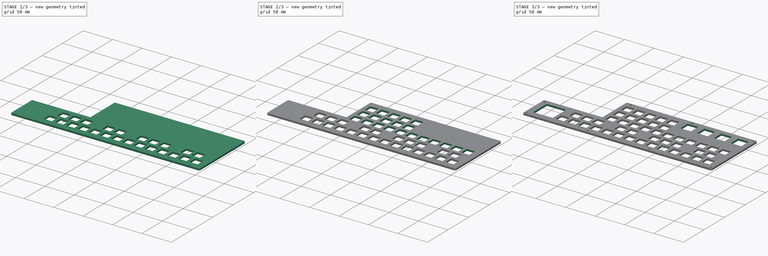
[diagram: build sequence overview — one tinted view per stage of 3, left to right]
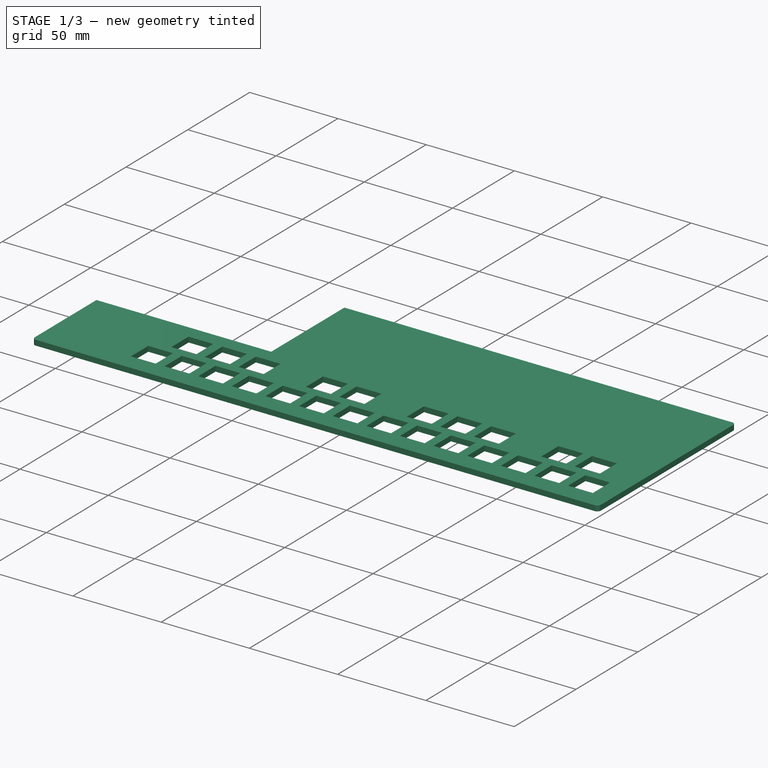
[diagram: stage 1 of 3 — iso view after this stage's code; geometry added in this stage tinted green]
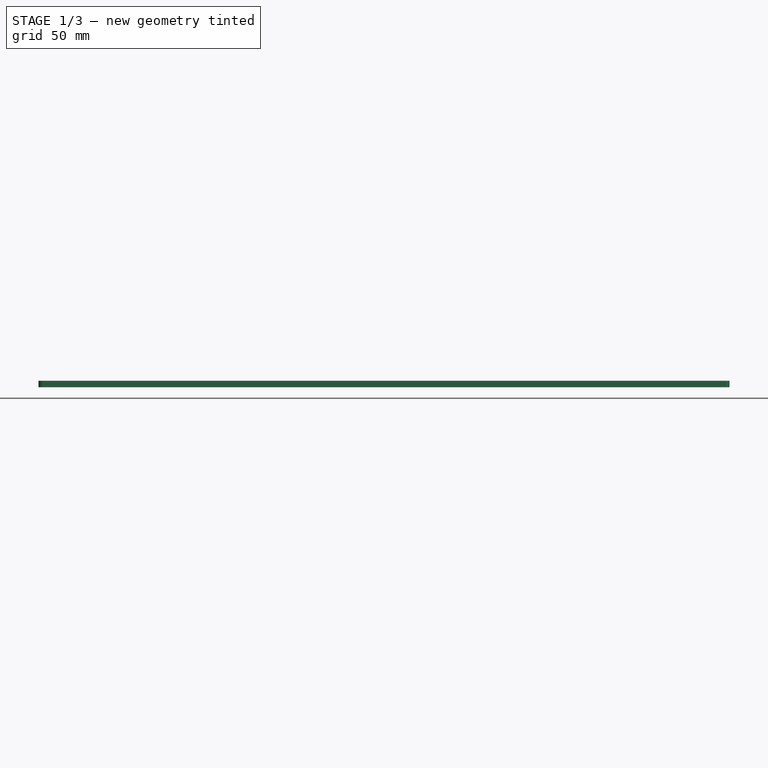
[diagram: stage 1 of 3 — front view after this stage's code; geometry added in this stage tinted green]
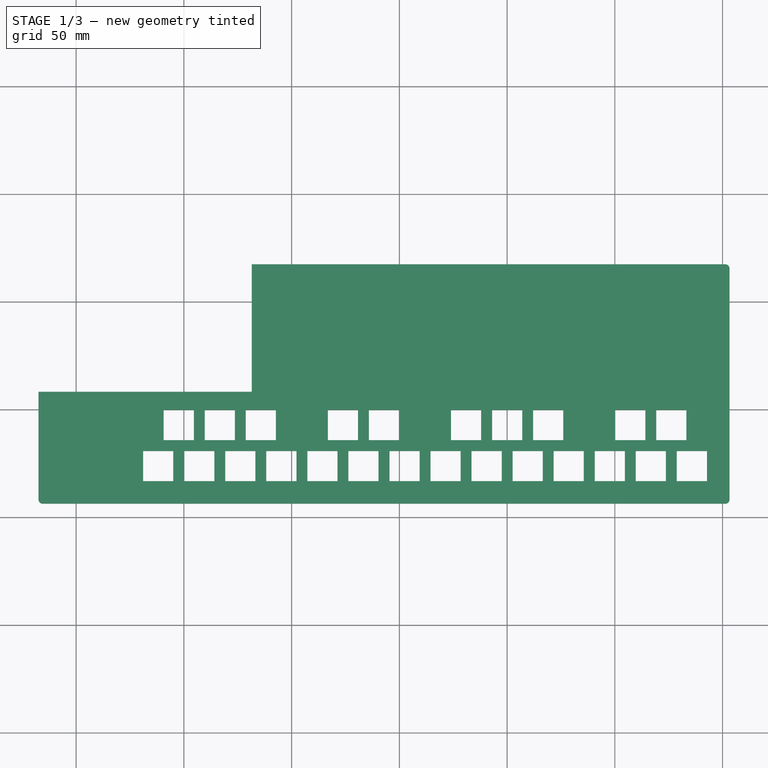
[diagram: stage 1 of 3 — top view after this stage's code; geometry added in this stage tinted green]
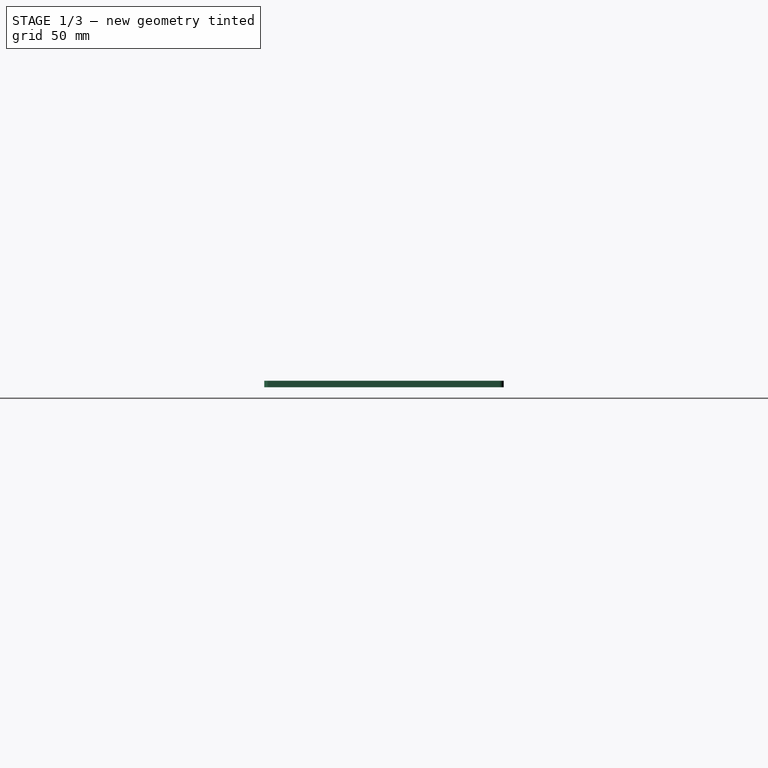
[diagram: stage 1 of 3 — right view after this stage's code; geometry added in this stage tinted green]
FCSTD DOCUMENT  (FreeCAD 0.19R24366 (Git))
Label: switch_layer
License: All rights reserved
LicenseURL: http://en.wikipedia.org/wiki/All_rights_reserved
objects: Sketcher::SketchObject×8, PartDesign::Pocket×7, PartDesign::Pad×1, PartDesign::Body×1, PartDesign::CoordinateSystem×1, App::Part×1
note: 26 computed .brp shape members not serialized (recipe doc carries the construction recipe); baked Part::Feature solids carry a one-line shape summary decoded from their .brp
EXTERNAL_REF file=../master.FCStd obj=Spreadsheet

FEATURE [Sketcher::SketchObject] Sketch  label="edge_sketch"
  FullyConstrained = true
  MapMode = 5
  Support = -> [XY_Plane001]
  expr: Constraints[24] = (<<master>>#<<inputs>>.key_width + <<master>>#<<inputs>>.horizontal_key_spacing) * 15
  expr: Constraints[59] = <<master>>#<<inputs>>.edge_fillet_radius
  expr: Constraints[49] = <<master>>#<<inputs>>.right_edge_padding
  expr: Constraints[58] = <<master>>#<<inputs>>.hyperpixel_height + <<master>>#<<inputs>>.hyperpixel_screen_padding
  expr: Constraints[10] = <<master>>#<<inputs>>.key_height
  expr: Constraints[57] = <<master>>#<<inputs>>.left_edge_padding
  expr: Constraints[37] = <<master>>#<<inputs>>.bottom_edge_padding
  expr: Constraints[22] = (<<master>>#<<inputs>>.key_height + <<master>>#<<inputs>>.vertical_key_spacing) * 4
  expr: Constraints[9] = <<master>>#<<inputs>>.key_width
  expr: Constraints[51] = <<master>>#<<inputs>>.hyperpixel_screen_width + <<master>>#<<inputs>>.hyperpixel_screen_padding
  expr: Constraints[56] = <<master>>#<<inputs>>.top_edge_padding
  sketch-geometry (22):
    g0: LineSegment StartX=-7 StartY=7 StartZ=0 EndX=7 EndY=7 EndZ=0
    g1: LineSegment StartX=7 StartY=7 StartZ=0 EndX=7 EndY=-7 EndZ=0
    g2: LineSegment StartX=7 StartY=-7 StartZ=0 EndX=-7 EndY=-7 EndZ=0
    g3: LineSegment StartX=-7 StartY=-7 StartZ=0 EndX=-7 EndY=7 EndZ=0
    g4: LineSegment StartX=-7 StartY=-69.2 StartZ=0 EndX=7 EndY=-69.2 EndZ=0
    g5: LineSegment StartX=7 StartY=-69.2 StartZ=0 EndX=7 EndY=-83.2 EndZ=0
    g6: LineSegment StartX=7 StartY=-83.2 StartZ=0 EndX=-7 EndY=-83.2 EndZ=0
    g7: LineSegment StartX=-7 StartY=-83.2 StartZ=0 EndX=-7 EndY=-69.2 EndZ=0
    g8: GeomPoint X=278.75 Y=7 Z=0
    g9: LineSegment StartX=81.5225 StartY=17.4775 StartZ=0 EndX=301.228 EndY=17.4775 EndZ=0
    g10: LineSegment StartX=303.228 StartY=15.4775 StartZ=0 EndX=303.228 EndY=-91.6775 EndZ=0
    g11: LineSegment StartX=301.228 StartY=-93.6775 StartZ=0 EndX=-15.4775 EndY=-93.6775 EndZ=0
    g12: LineSegment StartX=-17.4775 StartY=-91.6775 StartZ=0 EndX=-17.4775 EndY=-41.7225 EndZ=0
    g13: ArcOfCircle CenterX=301.228 CenterY=15.4775 CenterZ=0 NormalX=0 NormalY=0 NormalZ=1 AngleXU=0 Radius=2 StartAngle=0 EndAngle=1.5708
    g14: ArcOfCircle CenterX=301.228 CenterY=-91.6775 CenterZ=0 NormalX=0 NormalY=0 NormalZ=1 AngleXU=0 Radius=2 StartAngle=4.71239 EndAngle=6.28319
    g15: ArcOfCircle CenterX=-15.4775 CenterY=-91.6775 CenterZ=0 NormalX=0 NormalY=0 NormalZ=1 AngleXU=0 Radius=2 StartAngle=3.14159 EndAngle=4.71239
    g16: LineSegment StartX=278.75 StartY=7 StartZ=0 EndX=292.75 EndY=7 EndZ=0
    g17: LineSegment StartX=292.75 StartY=7 StartZ=0 EndX=292.75 EndY=-7 EndZ=0
    g18: LineSegment StartX=292.75 StartY=-7 StartZ=0 EndX=278.75 EndY=-7 EndZ=0
    g19: LineSegment StartX=278.75 StartY=-7 StartZ=0 EndX=278.75 EndY=7 EndZ=0
    g20: LineSegment StartX=-17.4775 StartY=-41.7225 StartZ=0 EndX=81.5225 EndY=-41.7225 EndZ=0
    g21: LineSegment StartX=81.5225 StartY=17.4775 StartZ=0 EndX=81.5225 EndY=-41.7225 EndZ=0
  constraints (60):
    c: Coincident(g0,g1)
    c: Coincident(g1,g2)
    c: Coincident(g2,g3)
    c: Coincident(g3,g0)
    c: Horizontal(g0)
    c: Horizontal(g2)
    c: Vertical(g1)
    c: Vertical(g3)
    c: Symmetric(g0,g1,g-1)
    c: Distance(g0) = 14
    c: Distance(g3) = 14
    c: Coincident(g4,g5)
    c: Coincident(g5,g6)
    c: Coincident(g6,g7)
    c: Coincident(g7,g4)
    c: Horizontal(g4)
    c: Horizontal(g6)
    c: Vertical(g5)
    c: Vertical(g7)
    c: Equal(g0,g4)
    c: Equal(g3,g7)
    c: DistanceX(g2,g4) = 0
    c: DistanceY(g4,g0) = 76.2
    c: DistanceY(g8,g0) = 0
    c: DistanceX(g0,g8) = 285.75
    c: Horizontal(g9)
    c: Horizontal(g11)
    c: Vertical(g10)
    c: Vertical(g12)
    c: Tangent(g9,g13) = 1.5708
    c: Tangent(g10,g13) = 1.5708
    c: Tangent(g11,g14) = 1.5708
    c: Tangent(g10,g14) = 1.5708
    c: Tangent(g11,g15) = 1.5708
    c: Tangent(g12,g15) = 1.5708
    c: Equal(g15,g14)
    c: Equal(g14,g13)
    c: DistanceY(g11,g6) = 10.4775
    c: Coincident(g16,g17)
    c: Coincident(g17,g18)
    c: Coincident(g18,g19)
    c: Coincident(g19,g16)
    c: Horizontal(g16)
    c: Horizontal(g18)
    c: Vertical(g17)
    c: Vertical(g19)
    c: Equal(g16,g4)
    c: Equal(g19,g6)
    c: Coincident(g16,g8)
    c: DistanceX(g16,g10) = 10.4775
    c: Horizontal(g20)
    c: Distance(g20) = 99
    c: Vertical(g21)
    c: Coincident(g21,g20)
    c: Coincident(g9,g21)
    c: Coincident(g12,g20)
    c: DistanceY(g16,g9) = 10.4775
    c: DistanceX(g12,g6) = 10.4775
    c: Distance(g21) = 59.2
    c: Radius(g13) = 2
FEATURE [PartDesign::Pad] Pad  label="edge_pad"
  Direction = (1,1,1)
  Length = 3
  Length2 = 100
  Profile = -> Sketch
  Type = 0
  expr: Length = <<master>>#<<inputs>>.switch_layer_thickness
FEATURE [Sketcher::SketchObject] Sketch001  label="white_keys_sketch"
  AttachmentOffset = pos=(0,0,3) rot=(0,0,1;0rad)
  FullyConstrained = true
  MapMode = 5
  Placement = pos=(0,0,3) rot=(0,0,1;0rad)
  Support = -> [XY_Plane001]
  expr: Constraints[204] = (<<master>>#<<inputs>>.key_height + <<master>>#<<inputs>>.vertical_key_spacing) * 4
  expr: Constraints[203] = (<<master>>#<<inputs>>.key_width + <<master>>#<<inputs>>.horizontal_key_spacing) * 2
  expr: Constraints[33] = <<master>>#<<inputs>>.key_width + <<master>>#<<inputs>>.horizontal_key_spacing
  expr: Constraints[20] = <<master>>#<<inputs>>.key_height
  expr: Constraints[8] = <<master>>#<<inputs>>.key_width
  expr: Constraints[19] = <<master>>#<<inputs>>.key_width
  expr: Constraints[9] = <<master>>#<<inputs>>.key_height
  expr: .AttachmentOffset.Base.z = <<master>>#<<inputs>>.switch_layer_thickness
  sketch-geometry (73):
    g0: LineSegment StartX=-7 StartY=7 StartZ=0 EndX=7 EndY=7 EndZ=0
    g1: LineSegment StartX=7 StartY=7 StartZ=0 EndX=7 EndY=-7 EndZ=0
    g2: LineSegment StartX=7 StartY=-7 StartZ=0 EndX=-7 EndY=-7 EndZ=0
    g3: LineSegment StartX=-7 StartY=-7 StartZ=0 EndX=-7 EndY=7 EndZ=0
    g4: LineSegment StartX=31.1 StartY=-69.2 StartZ=0 EndX=45.1 EndY=-69.2 EndZ=0
    g5: LineSegment StartX=45.1 StartY=-69.2 StartZ=0 EndX=45.1 EndY=-83.2 EndZ=0
    g6: LineSegment StartX=45.1 StartY=-83.2 StartZ=0 EndX=31.1 EndY=-83.2 EndZ=0
    g7: LineSegment StartX=31.1 StartY=-83.2 StartZ=0 EndX=31.1 EndY=-69.2 EndZ=0
    g8: LineSegment StartX=50.15 StartY=-69.2 StartZ=0 EndX=64.15 EndY=-69.2 EndZ=0
    g9: LineSegment StartX=64.15 StartY=-69.2 StartZ=0 EndX=64.15 EndY=-83.2 EndZ=0
    g10: LineSegment StartX=64.15 StartY=-83.2 StartZ=0 EndX=50.15 EndY=-83.2 EndZ=0
    g11: LineSegment StartX=50.15 StartY=-83.2 StartZ=0 EndX=50.15 EndY=-69.2 EndZ=0
    g12: LineSegment StartX=31.1 StartY=-69.2 StartZ=0 EndX=50.15 EndY=-69.2 EndZ=0
    g13: LineSegment StartX=69.2 StartY=-69.2 StartZ=0 EndX=83.2 EndY=-69.2 EndZ=0
    g14: LineSegment StartX=83.2 StartY=-69.2 StartZ=0 EndX=83.2 EndY=-83.2 EndZ=0
    g15: LineSegment StartX=83.2 StartY=-83.2 StartZ=0 EndX=69.2 EndY=-83.2 EndZ=0
    g16: LineSegment StartX=69.2 StartY=-83.2 StartZ=0 EndX=69.2 EndY=-69.2 EndZ=0
    g17: LineSegment StartX=50.15 StartY=-69.2 StartZ=0 EndX=69.2 EndY=-69.2 EndZ=0
    g18: LineSegment StartX=88.25 StartY=-69.2 StartZ=0 EndX=102.25 EndY=-69.2 EndZ=0
    g19: LineSegment StartX=102.25 StartY=-69.2 StartZ=0 EndX=102.25 EndY=-83.2 EndZ=0
    g20: LineSegment StartX=102.25 StartY=-83.2 StartZ=0 EndX=88.25 EndY=-83.2 EndZ=0
    g21: LineSegment StartX=88.25 StartY=-83.2 StartZ=0 EndX=88.25 EndY=-69.2 EndZ=0
    g22: LineSegment StartX=69.2 StartY=-69.2 StartZ=0 EndX=88.25 EndY=-69.2 EndZ=0
    g23: LineSegment StartX=107.3 StartY=-69.2 StartZ=0 EndX=121.3 EndY=-69.2 EndZ=0
    g24: LineSegment StartX=121.3 StartY=-69.2 StartZ=0 EndX=121.3 EndY=-83.2 EndZ=0
    g25: LineSegment StartX=121.3 StartY=-83.2 StartZ=0 EndX=107.3 EndY=-83.2 EndZ=0
    g26: LineSegment StartX=107.3 StartY=-83.2 StartZ=0 EndX=107.3 EndY=-69.2 EndZ=0
    g27: LineSegment StartX=88.25 StartY=-69.2 StartZ=0 EndX=107.3 EndY=-69.2 EndZ=0
    g28: LineSegment StartX=126.35 StartY=-69.2 StartZ=0 EndX=140.35 EndY=-69.2 EndZ=0
    g29: LineSegment StartX=140.35 StartY=-69.2 StartZ=0 EndX=140.35 EndY=-83.2 EndZ=0
    g30: LineSegment StartX=140.35 StartY=-83.2 StartZ=0 EndX=126.35 EndY=-83.2 EndZ=0
    g31: LineSegment StartX=126.35 StartY=-83.2 StartZ=0 EndX=126.35 EndY=-69.2 EndZ=0
    g32: LineSegment StartX=107.3 StartY=-69.2 StartZ=0 EndX=126.35 EndY=-69.2 EndZ=0
    g33: LineSegment StartX=145.4 StartY=-69.2 StartZ=0 EndX=159.4 EndY=-69.2 EndZ=0
    g34: LineSegment StartX=159.4 StartY=-69.2 StartZ=0 EndX=159.4 EndY=-83.2 EndZ=0
    g35: LineSegment StartX=159.4 StartY=-83.2 StartZ=0 EndX=145.4 EndY=-83.2 EndZ=0
    g36: LineSegment StartX=145.4 StartY=-83.2 StartZ=0 EndX=145.4 EndY=-69.2 EndZ=0
    g37: LineSegment StartX=126.35 StartY=-69.2 StartZ=0 EndX=145.4 EndY=-69.2 EndZ=0
    g38: LineSegment StartX=164.45 StartY=-69.2 StartZ=0 EndX=178.45 EndY=-69.2 EndZ=0
    g39: LineSegment StartX=178.45 StartY=-69.2 StartZ=0 EndX=178.45 EndY=-83.2 EndZ=0
    g40: LineSegment StartX=178.45 StartY=-83.2 StartZ=0 EndX=164.45 EndY=-83.2 EndZ=0
    g41: LineSegment StartX=164.45 StartY=-83.2 StartZ=0 EndX=164.45 EndY=-69.2 EndZ=0
    g42: LineSegment StartX=145.4 StartY=-69.2 StartZ=0 EndX=164.45 EndY=-69.2 EndZ=0
    g43: LineSegment StartX=183.5 StartY=-69.2 StartZ=0 EndX=197.5 EndY=-69.2 EndZ=0
    g44: LineSegment StartX=197.5 StartY=-69.2 StartZ=0 EndX=197.5 EndY=-83.2 EndZ=0
    g45: LineSegment StartX=197.5 StartY=-83.2 StartZ=0 EndX=183.5 EndY=-83.2 EndZ=0
    g46: LineSegment StartX=183.5 StartY=-83.2 StartZ=0 EndX=183.5 EndY=-69.2 EndZ=0
    g47: LineSegment StartX=164.45 StartY=-69.2 StartZ=0 EndX=183.5 EndY=-69.2 EndZ=0
    g48: LineSegment StartX=202.55 StartY=-69.2 StartZ=0 EndX=216.55 EndY=-69.2 EndZ=0
    g49: LineSegment StartX=216.55 StartY=-69.2 StartZ=0 EndX=216.55 EndY=-83.2 EndZ=0
    g50: LineSegment StartX=216.55 StartY=-83.2 StartZ=0 EndX=202.55 EndY=-83.2 EndZ=0
    g51: LineSegment StartX=202.55 StartY=-83.2 StartZ=0 EndX=202.55 EndY=-69.2 EndZ=0
    g52: LineSegment StartX=183.5 StartY=-69.2 StartZ=0 EndX=202.55 EndY=-69.2 EndZ=0
    g53: LineSegment StartX=221.6 StartY=-69.2 StartZ=0 EndX=235.6 EndY=-69.2 EndZ=0
    g54: LineSegment StartX=235.6 StartY=-69.2 StartZ=0 EndX=235.6 EndY=-83.2 EndZ=0
    g55: LineSegment StartX=235.6 StartY=-83.2 StartZ=0 EndX=221.6 EndY=-83.2 EndZ=0
    g56: LineSegment StartX=221.6 StartY=-83.2 StartZ=0 EndX=221.6 EndY=-69.2 EndZ=0
    g57: LineSegment StartX=202.55 StartY=-69.2 StartZ=0 EndX=221.6 EndY=-69.2 EndZ=0
    g58: LineSegment StartX=240.65 StartY=-69.2 StartZ=0 EndX=254.65 EndY=-69.2 EndZ=0
    g59: LineSegment StartX=254.65 StartY=-69.2 StartZ=0 EndX=254.65 EndY=-83.2 EndZ=0
    g60: LineSegment StartX=254.65 StartY=-83.2 StartZ=0 EndX=240.65 EndY=-83.2 EndZ=0
    g61: LineSegment StartX=240.65 StartY=-83.2 StartZ=0 EndX=240.65 EndY=-69.2 EndZ=0
    g62: LineSegment StartX=221.6 StartY=-69.2 StartZ=0 EndX=240.65 EndY=-69.2 EndZ=0
    g63: LineSegment StartX=259.7 StartY=-69.2 StartZ=0 EndX=273.7 EndY=-69.2 EndZ=0
    g64: LineSegment StartX=273.7 StartY=-69.2 StartZ=0 EndX=273.7 EndY=-83.2 EndZ=0
    g65: LineSegment StartX=273.7 StartY=-83.2 StartZ=0 EndX=259.7 EndY=-83.2 EndZ=0
    g66: LineSegment StartX=259.7 StartY=-83.2 StartZ=0 EndX=259.7 EndY=-69.2 EndZ=0
    g67: LineSegment StartX=240.65 StartY=-69.2 StartZ=0 EndX=259.7 EndY=-69.2 EndZ=0
    g68: LineSegment StartX=278.75 StartY=-69.2 StartZ=0 EndX=292.75 EndY=-69.2 EndZ=0
    g69: LineSegment StartX=292.75 StartY=-69.2 StartZ=0 EndX=292.75 EndY=-83.2 EndZ=0
    g70: LineSegment StartX=292.75 StartY=-83.2 StartZ=0 EndX=278.75 EndY=-83.2 EndZ=0
    g71: LineSegment StartX=278.75 StartY=-83.2 StartZ=0 EndX=278.75 EndY=-69.2 EndZ=0
    g72: LineSegment StartX=259.7 StartY=-69.2 StartZ=0 EndX=278.75 EndY=-69.2 EndZ=0
  constraints (205):
    c: Coincident(g0,g1)
    c: Coincident(g1,g2)
    c: Coincident(g2,g3)
    c: Coincident(g3,g0)
    c: Horizontal(g0)
    c: Horizontal(g2)
    c: Vertical(g1)
    c: Vertical(g3)
    c: Distance(g0) = 14
    c: Distance(g3) = 14
    c: Symmetric(g0,g1,g-1)
    c: Coincident(g4,g5)
    c: Coincident(g5,g6)
    c: Coincident(g6,g7)
    c: Coincident(g7,g4)
    c: Horizontal(g4)
    c: Horizontal(g6)
    c: Vertical(g5)
    c: Vertical(g7)
    c: Distance(g4) = 14
    c: Distance(g7) = 14
    c: Coincident(g8,g9)
    c: Coincident(g9,g10)
    c: Coincident(g10,g11)
    c: Coincident(g11,g8)
    c: Horizontal(g8)
    c: Horizontal(g10)
    c: Vertical(g9)
    c: Vertical(g11)
    c: Equal(g4,g8) = 14
    c: Equal(g7,g11) = 14
    c: Coincident(g4,g12)
    c: Coincident(g8,g12)
    c: Distance(g12) = 19.05
    c: Angle(g12) = 0
    c: Coincident(g13,g14)
    c: Coincident(g14,g15)
    c: Coincident(g15,g16)
    c: Coincident(g16,g13)
    c: Horizontal(g13)
    c: Horizontal(g15)
    c: Vertical(g14)
    c: Vertical(g16)
    c: Equal(g4,g13) = 14
    c: Equal(g7,g16) = 14
    c: Coincident(g8,g17)
    c: Coincident(g13,g17)
    c: Equal(g12,g17)
    c: Parallel(g17,g12)
    c: Coincident(g18,g19)
    c: Coincident(g19,g20)
    c: Coincident(g20,g21)
    c: Coincident(g21,g18)
    c: Horizontal(g18)
    c: Horizontal(g20)
    c: Vertical(g19)
    c: Vertical(g21)
    c: Equal(g4,g18) = 14
    c: Equal(g7,g21) = 14
    c: Coincident(g13,g22)
    c: Coincident(g18,g22)
    c: Equal(g12,g22)
    c: Parallel(g22,g12)
    c: Coincident(g23,g24)
    c: Coincident(g24,g25)
    c: Coincident(g25,g26)
    c: Coincident(g26,g23)
    c: Horizontal(g23)
    c: Horizontal(g25)
    c: Vertical(g24)
    c: Vertical(g26)
    c: Equal(g4,g23) = 14
    c: Equal(g7,g26) = 14
    c: Coincident(g18,g27)
    c: Coincident(g23,g27)
    c: Equal(g12,g27)
    c: Parallel(g27,g12)
    c: Coincident(g28,g29)
    c: Coincident(g29,g30)
    c: Coincident(g30,g31)
    c: Coincident(g31,g28)
    c: Horizontal(g28)
    c: Horizontal(g30)
    c: Vertical(g29)
    c: Vertical(g31)
    c: Equal(g4,g28) = 14
    c: Equal(g7,g31) = 14
    c: Coincident(g23,g32)
    c: Coincident(g28,g32)
    c: Equal(g12,g32)
    c: Parallel(g32,g12)
    c: Coincident(g33,g34)
    c: Coincident(g34,g35)
    c: Coincident(g35,g36)
    c: Coincident(g36,g33)
    c: Horizontal(g33)
    c: Horizontal(g35)
    c: Vertical(g34)
    c: Vertical(g36)
    c: Equal(g4,g33) = 14
    c: Equal(g7,g36) = 14
    c: Coincident(g28,g37)
    c: Coincident(g33,g37)
    c: Equal(g12,g37)
    c: Parallel(g37,g12)
    c: Coincident(g38,g39)
    c: Coincident(g39,g40)
    c: Coincident(g40,g41)
    c: Coincident(g41,g38)
    c: Horizontal(g38)
    c: Horizontal(g40)
    c: Vertical(g39)
    c: Vertical(g41)
    c: Equal(g4,g38) = 14
    c: Equal(g7,g41) = 14
    c: Coincident(g33,g42)
    c: Coincident(g38,g42)
    c: Equal(g12,g42)
    c: Parallel(g42,g12)
    c: Coincident(g43,g44)
    c: Coincident(g44,g45)
    c: Coincident(g45,g46)
    c: Coincident(g46,g43)
    c: Horizontal(g43)
    c: Horizontal(g45)
    c: Vertical(g44)
    c: Vertical(g46)
    c: Equal(g4,g43) = 14
    c: Equal(g7,g46) = 14
    c: Coincident(g38,g47)
    c: Coincident(g43,g47)
    c: Equal(g12,g47)
    c: Parallel(g47,g12)
    c: Coincident(g48,g49)
    c: Coincident(g49,g50)
    c: Coincident(g50,g51)
    c: Coincident(g51,g48)
    c: Horizontal(g48)
    c: Horizontal(g50)
    c: Vertical(g49)
    c: Vertical(g51)
    c: Equal(g4,g48) = 14
    c: Equal(g7,g51) = 14
    c: Coincident(g43,g52)
    c: Coincident(g48,g52)
    c: Equal(g12,g52)
    c: Parallel(g52,g12)
    c: Coincident(g53,g54)
    c: Coincident(g54,g55)
    c: Coincident(g55,g56)
    c: Coincident(g56,g53)
    c: Horizontal(g53)
    c: Horizontal(g55)
    c: Vertical(g54)
    c: Vertical(g56)
    c: Equal(g4,g53) = 14
    c: Equal(g7,g56) = 14
    c: Coincident(g48,g57)
    c: Coincident(g53,g57)
    c: Equal(g12,g57)
    c: Parallel(g57,g12)
    c: Coincident(g58,g59)
    c: Coincident(g59,g60)
    c: Coincident(g60,g61)
    c: Coincident(g61,g58)
    c: Horizontal(g58)
    c: Horizontal(g60)
    c: Vertical(g59)
    c: Vertical(g61)
    c: Equal(g4,g58) = 14
    c: Equal(g7,g61) = 14
    c: Coincident(g53,g62)
    c: Coincident(g58,g62)
    c: Equal(g12,g62)
    c: Parallel(g62,g12)
    c: Coincident(g63,g64)
    c: Coincident(g64,g65)
    c: Coincident(g65,g66)
    c: Coincident(g66,g63)
    c: Horizontal(g63)
    c: Horizontal(g65)
    c: Vertical(g64)
    c: Vertical(g66)
    c: Equal(g4,g63) = 14
    c: Equal(g7,g66) = 14
    c: Coincident(g58,g67)
    c: Coincident(g63,g67)
    c: Equal(g12,g67)
    c: Parallel(g67,g12)
    c: Coincident(g68,g69)
    c: Coincident(g69,g70)
    c: Coincident(g70,g71)
    c: Coincident(g71,g68)
    c: Horizontal(g68)
    c: Horizontal(g70)
    c: Vertical(g69)
    c: Vertical(g71)
    c: Equal(g4,g68) = 14
    c: Equal(g7,g71) = 14
    c: Coincident(g63,g72)
    c: Coincident(g68,g72)
    c: Equal(g12,g72)
    c: Parallel(g72,g12)
    c: DistanceX(g0,g4) = 38.1
    c: DistanceY(g4,g0) = 76.2
FEATURE [PartDesign::Pocket] Pocket  label="white_keys_pocket"
  BaseFeature = -> Pad
  Length = 4
  Length2 = 100
  Profile = -> Sketch001
  Type = 0
  expr: Length = <<master>>#<<inputs>>.switch_layer_thickness + 1mm
FEATURE [Sketcher::SketchObject] Sketch002  label="black_keys_sketch"
  AttachmentOffset = pos=(0,0,3) rot=(0,0,1;0rad)
  FullyConstrained = true
  MapMode = 5
  Placement = pos=(0,0,3) rot=(0,0,1;0rad)
  Support = -> [XY_Plane001]
  expr: Constraints[19] = <<master>>#<<inputs>>.key_width
  expr: Constraints[9] = <<master>>#<<inputs>>.key_height
  expr: Constraints[20] = <<master>>#<<inputs>>.key_height
  expr: Constraints[33] = <<master>>#<<inputs>>.key_width + <<master>>#<<inputs>>.horizontal_key_spacing
  expr: Constraints[166] = (<<master>>#<<inputs>>.key_height + <<master>>#<<inputs>>.vertical_key_spacing) * 3
  expr: Constraints[8] = <<master>>#<<inputs>>.key_width
  expr: .AttachmentOffset.Base.z = <<master>>#<<inputs>>.switch_layer_thickness
  expr: Constraints[165] = (<<master>>#<<inputs>>.key_width + <<master>>#<<inputs>>.vertical_key_spacing) * 2 + (<<master>>#<<inputs>>.key_width + <<master>>#<<inputs>>.horizontal_key_spacing) / 2
  sketch-geometry (59):
    g0: LineSegment StartX=-7 StartY=7 StartZ=0 EndX=7 EndY=7 EndZ=0
    g1: LineSegment StartX=7 StartY=7 StartZ=0 EndX=7 EndY=-7 EndZ=0
    g2: LineSegment StartX=7 StartY=-7 StartZ=0 EndX=-7 EndY=-7 EndZ=0
    g3: LineSegment StartX=-7 StartY=-7 StartZ=0 EndX=-7 EndY=7 EndZ=0
    g4: LineSegment StartX=40.625 StartY=-50.15 StartZ=0 EndX=54.625 EndY=-50.15 EndZ=0
    g5: LineSegment StartX=54.625 StartY=-50.15 StartZ=0 EndX=54.625 EndY=-64.15 EndZ=0
    g6: LineSegment StartX=54.625 StartY=-64.15 StartZ=0 EndX=40.625 EndY=-64.15 EndZ=0
    g7: LineSegment StartX=40.625 StartY=-64.15 StartZ=0 EndX=40.625 EndY=-50.15 EndZ=0
    g8: LineSegment StartX=59.675 StartY=-50.15 StartZ=0 EndX=73.675 EndY=-50.15 EndZ=0
    g9: LineSegment StartX=73.675 StartY=-50.15 StartZ=0 EndX=73.675 EndY=-64.15 EndZ=0
    g10: LineSegment StartX=73.675 StartY=-64.15 StartZ=0 EndX=59.675 EndY=-64.15 EndZ=0
    g11: LineSegment StartX=59.675 StartY=-64.15 StartZ=0 EndX=59.675 EndY=-50.15 EndZ=0
    g12: LineSegment StartX=40.625 StartY=-50.15 StartZ=0 EndX=59.675 EndY=-50.15 EndZ=0
    g13: LineSegment StartX=78.725 StartY=-50.15 StartZ=0 EndX=92.725 EndY=-50.15 EndZ=0
    g14: LineSegment StartX=92.725 StartY=-50.15 StartZ=0 EndX=92.725 EndY=-64.15 EndZ=0
    g15: LineSegment StartX=92.725 StartY=-64.15 StartZ=0 EndX=78.725 EndY=-64.15 EndZ=0
    g16: LineSegment StartX=78.725 StartY=-64.15 StartZ=0 EndX=78.725 EndY=-50.15 EndZ=0
    g17: LineSegment StartX=59.675 StartY=-50.15 StartZ=0 EndX=78.725 EndY=-50.15 EndZ=0
    g18: LineSegment StartX=97.775 StartY=-50.15 StartZ=0 EndX=111.775 EndY=-50.15 EndZ=0
    g19: LineSegment StartX=78.725 StartY=-50.15 StartZ=0 EndX=97.775 EndY=-50.15 EndZ=0
    g20: LineSegment StartX=116.825 StartY=-50.15 StartZ=0 EndX=130.825 EndY=-50.15 EndZ=0
    g21: LineSegment StartX=130.825 StartY=-50.15 StartZ=0 EndX=130.825 EndY=-64.15 EndZ=0
    g22: LineSegment StartX=130.825 StartY=-64.15 StartZ=0 EndX=116.825 EndY=-64.15 EndZ=0
    g23: LineSegment StartX=116.825 StartY=-64.15 StartZ=0 EndX=116.825 EndY=-50.15 EndZ=0
    g24: LineSegment StartX=97.775 StartY=-50.15 StartZ=0 EndX=116.825 EndY=-50.15 EndZ=0
    g25: LineSegment StartX=135.875 StartY=-50.15 StartZ=0 EndX=149.875 EndY=-50.15 EndZ=0
    g26: LineSegment StartX=149.875 StartY=-50.15 StartZ=0 EndX=149.875 EndY=-64.15 EndZ=0
    g27: LineSegment StartX=149.875 StartY=-64.15 StartZ=0 EndX=135.875 EndY=-64.15 EndZ=0
    g28: LineSegment StartX=135.875 StartY=-64.15 StartZ=0 EndX=135.875 EndY=-50.15 EndZ=0
    g29: LineSegment StartX=116.825 StartY=-50.15 StartZ=0 EndX=135.875 EndY=-50.15 EndZ=0
    g30: LineSegment StartX=154.925 StartY=-50.15 StartZ=0 EndX=168.925 EndY=-50.15 EndZ=0
    g31: LineSegment StartX=135.875 StartY=-50.15 StartZ=0 EndX=154.925 EndY=-50.15 EndZ=0
    g32: LineSegment StartX=173.975 StartY=-50.15 StartZ=0 EndX=187.975 EndY=-50.15 EndZ=0
    g33: LineSegment StartX=187.975 StartY=-50.15 StartZ=0 EndX=187.975 EndY=-64.15 EndZ=0
    g34: LineSegment StartX=187.975 StartY=-64.15 StartZ=0 EndX=173.975 EndY=-64.15 EndZ=0
    g35: LineSegment StartX=173.975 StartY=-64.15 StartZ=0 EndX=173.975 EndY=-50.15 EndZ=0
    g36: LineSegment StartX=154.925 StartY=-50.15 StartZ=0 EndX=173.975 EndY=-50.15 EndZ=0
    g37: LineSegment StartX=193.025 StartY=-50.15 StartZ=0 EndX=207.025 EndY=-50.15 EndZ=0
    g38: LineSegment StartX=207.025 StartY=-50.15 StartZ=0 EndX=207.025 EndY=-64.15 EndZ=0
    g39: LineSegment StartX=207.025 StartY=-64.15 StartZ=0 EndX=193.025 EndY=-64.15 EndZ=0
    g40: LineSegment StartX=193.025 StartY=-64.15 StartZ=0 EndX=193.025 EndY=-50.15 EndZ=0
    g41: LineSegment StartX=173.975 StartY=-50.15 StartZ=0 EndX=193.025 EndY=-50.15 EndZ=0
    g42: LineSegment StartX=212.075 StartY=-50.15 StartZ=0 EndX=226.075 EndY=-50.15 EndZ=0
    g43: LineSegment StartX=226.075 StartY=-50.15 StartZ=0 EndX=226.075 EndY=-64.15 EndZ=0
    g44: LineSegment StartX=226.075 StartY=-64.15 StartZ=0 EndX=212.075 EndY=-64.15 EndZ=0
    g45: LineSegment StartX=212.075 StartY=-64.15 StartZ=0 EndX=212.075 EndY=-50.15 EndZ=0
    g46: LineSegment StartX=193.025 StartY=-50.15 StartZ=0 EndX=212.075 EndY=-50.15 EndZ=0
    g47: LineSegment StartX=231.125 StartY=-50.15 StartZ=0 EndX=245.125 EndY=-50.15 EndZ=0
    g48: LineSegment StartX=212.075 StartY=-50.15 StartZ=0 EndX=231.125 EndY=-50.15 EndZ=0
    g49: LineSegment StartX=250.175 StartY=-50.15 StartZ=0 EndX=264.175 EndY=-50.15 EndZ=0
    g50: LineSegment StartX=264.175 StartY=-50.15 StartZ=0 EndX=264.175 EndY=-64.15 EndZ=0
    g51: LineSegment StartX=264.175 StartY=-64.15 StartZ=0 EndX=250.175 EndY=-64.15 EndZ=0
    g52: LineSegment StartX=250.175 StartY=-64.15 StartZ=0 EndX=250.175 EndY=-50.15 EndZ=0
    g53: LineSegment StartX=231.125 StartY=-50.15 StartZ=0 EndX=250.175 EndY=-50.15 EndZ=0
    g54: LineSegment StartX=269.225 StartY=-50.15 StartZ=0 EndX=283.225 EndY=-50.15 EndZ=0
    g55: LineSegment StartX=283.225 StartY=-50.15 StartZ=0 EndX=283.225 EndY=-64.15 EndZ=0
    g56: LineSegment StartX=283.225 StartY=-64.15 StartZ=0 EndX=269.225 EndY=-64.15 EndZ=0
    g57: LineSegment StartX=269.225 StartY=-64.15 StartZ=0 EndX=269.225 EndY=-50.15 EndZ=0
    g58: LineSegment StartX=250.175 StartY=-50.15 StartZ=0 EndX=269.225 EndY=-50.15 EndZ=0
  constraints (167):
    c: Coincident(g0,g1)
    c: Coincident(g1,g2)
    c: Coincident(g2,g3)
    c: Coincident(g3,g0)
    c: Horizontal(g0)
    c: Horizontal(g2)
    c: Vertical(g1)
    c: Vertical(g3)
    c: Distance(g0) = 14
    c: Distance(g3) = 14
    c: Symmetric(g0,g1,g-1)
    c: Coincident(g4,g5)
    c: Coincident(g5,g6)
    c: Coincident(g6,g7)
    c: Coincident(g7,g4)
    c: Horizontal(g4)
    c: Horizontal(g6)
    c: Vertical(g5)
    c: Vertical(g7)
    c: Distance(g4) = 14
    c: Distance(g7) = 14
    c: Coincident(g8,g9)
    c: Coincident(g9,g10)
    c: Coincident(g10,g11)
    c: Coincident(g11,g8)
    c: Horizontal(g8)
    c: Horizontal(g10)
    c: Vertical(g9)
    c: Vertical(g11)
    c: Equal(g4,g8) = 14
    c: Equal(g7,g11) = 14
    c: Coincident(g4,g12)
    c: Coincident(g8,g12)
    c: Distance(g12) = 19.05
    c: Angle(g12) = 0
    c: Coincident(g13,g14)
    c: Coincident(g14,g15)
    c: Coincident(g15,g16)
    c: Coincident(g16,g13)
    c: Horizontal(g13)
    c: Horizontal(g15)
    c: Vertical(g14)
    c: Vertical(g16)
    c: Equal(g4,g13) = 14
    c: Equal(g7,g16) = 14
    c: Coincident(g8,g17)
    c: Coincident(g13,g17)
    c: Equal(g12,g17)
    c: Parallel(g17,g12)
    c: Horizontal(g18)
    c: Equal(g4,g18) = 14
    c: Coincident(g13,g19)
    c: Coincident(g18,g19)
    c: Equal(g12,g19)
    c: Parallel(g19,g12)
    c: Coincident(g20,g21)
    c: Coincident(g21,g22)
    c: Coincident(g22,g23)
    c: Coincident(g23,g20)
    c: Horizontal(g20)
    c: Horizontal(g22)
    c: Vertical(g21)
    c: Vertical(g23)
    c: Equal(g4,g20) = 14
    c: Equal(g7,g23) = 14
    c: Coincident(g18,g24)
    c: Coincident(g20,g24)
    c: Equal(g12,g24)
    c: Parallel(g24,g12)
    c: Coincident(g25,g26)
    c: Coincident(g26,g27)
    c: Coincident(g27,g28)
    c: Coincident(g28,g25)
    c: Horizontal(g25)
    c: Horizontal(g27)
    c: Vertical(g26)
    c: Vertical(g28)
    c: Equal(g4,g25) = 14
    c: Equal(g7,g28) = 14
    c: Coincident(g20,g29)
    c: Coincident(g25,g29)
    c: Equal(g12,g29)
    c: Parallel(g29,g12)
    c: Horizontal(g30)
    c: Equal(g4,g30) = 14
    c: Coincident(g25,g31)
    c: Coincident(g30,g31)
    c: Equal(g12,g31)
    c: Parallel(g31,g12)
    c: Coincident(g32,g33)
    c: Coincident(g33,g34)
    c: Coincident(g34,g35)
    c: Coincident(g35,g32)
    c: Horizontal(g32)
    c: Horizontal(g34)
    c: Vertical(g33)
    c: Vertical(g35)
    c: Equal(g4,g32) = 14
    c: Equal(g7,g35) = 14
    c: Coincident(g30,g36)
    c: Coincident(g32,g36)
    c: Equal(g12,g36)
    c: Parallel(g36,g12)
    c: Coincident(g37,g38)
    c: Coincident(g38,g39)
    c: Coincident(g39,g40)
    c: Coincident(g40,g37)
    c: Horizontal(g37)
    c: Horizontal(g39)
    c: Vertical(g38)
    c: Vertical(g40)
    c: Equal(g4,g37) = 14
    c: Equal(g7,g40) = 14
    c: Coincident(g32,g41)
    c: Coincident(g37,g41)
    c: Equal(g12,g41)
    c: Parallel(g41,g12)
    c: Coincident(g42,g43)
    c: Coincident(g43,g44)
    c: Coincident(g44,g45)
    c: Coincident(g45,g42)
    c: Horizontal(g42)
    c: Horizontal(g44)
    c: Vertical(g43)
    c: Vertical(g45)
    c: Equal(g4,g42) = 14
    c: Equal(g7,g45) = 14
    c: Coincident(g37,g46)
    c: Coincident(g42,g46)
    c: Equal(g12,g46)
    c: Parallel(g46,g12)
    c: Horizontal(g47)
    c: Equal(g4,g47) = 14
    c: Coincident(g42,g48)
    c: Coincident(g47,g48)
    c: Equal(g12,g48)
    c: Parallel(g48,g12)
    c: Coincident(g49,g50)
    c: Coincident(g50,g51)
    c: Coincident(g51,g52)
    c: Coincident(g52,g49)
    c: Horizontal(g49)
    c: Horizontal(g51)
    c: Vertical(g50)
    c: Vertical(g52)
    c: Equal(g4,g49) = 14
    c: Equal(g7,g52) = 14
    c: Coincident(g47,g53)
    c: Coincident(g49,g53)
    c: Equal(g12,g53)
    c: Parallel(g53,g12)
    c: Coincident(g54,g55)
    c: Coincident(g55,g56)
    c: Coincident(g56,g57)
    c: Coincident(g57,g54)
    c: Horizontal(g54)
    c: Horizontal(g56)
    c: Vertical(g55)
    c: Vertical(g57)
    c: Equal(g4,g54) = 14
    c: Equal(g7,g57) = 14
    c: Coincident(g49,g58)
    c: Coincident(g54,g58)
    c: Equal(g12,g58)
    c: Parallel(g58,g12)
    c: DistanceX(g0,g4) = 47.625
    c: DistanceY(g4,g0) = 57.15
FEATURE [PartDesign::Pocket] Pocket001  label="black_keys_pocket"
  BaseFeature = -> Pocket
  Length = 4
  Length2 = 100
  Profile = -> Sketch002
  Type = 0
  expr: Length = <<master>>#<<inputs>>.switch_layer_thickness + 1mm
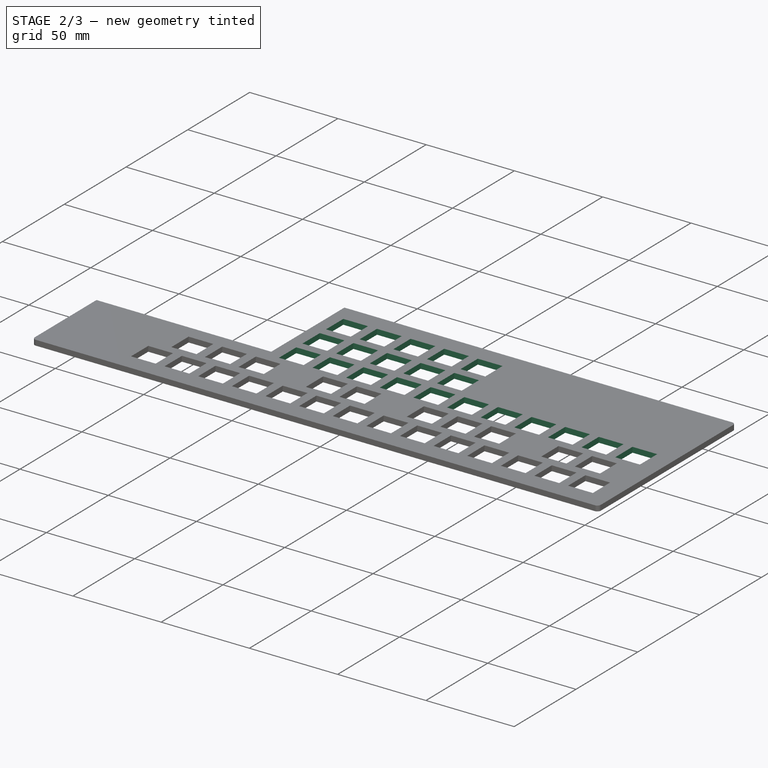
[diagram: stage 2 of 3 — iso view after this stage's code; geometry added in this stage tinted green]
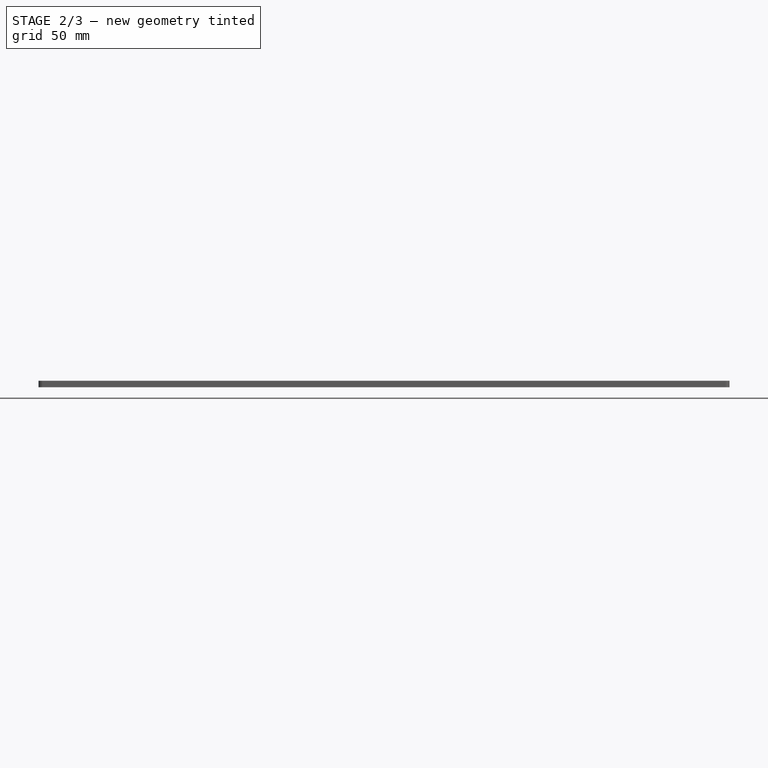
[diagram: stage 2 of 3 — front view after this stage's code; geometry added in this stage tinted green]
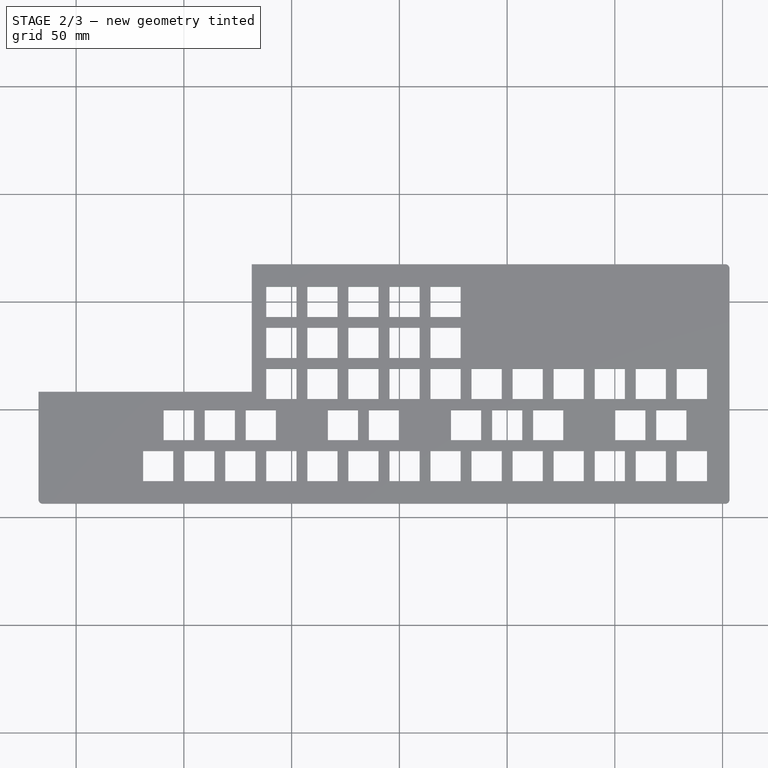
[diagram: stage 2 of 3 — top view after this stage's code; geometry added in this stage tinted green]
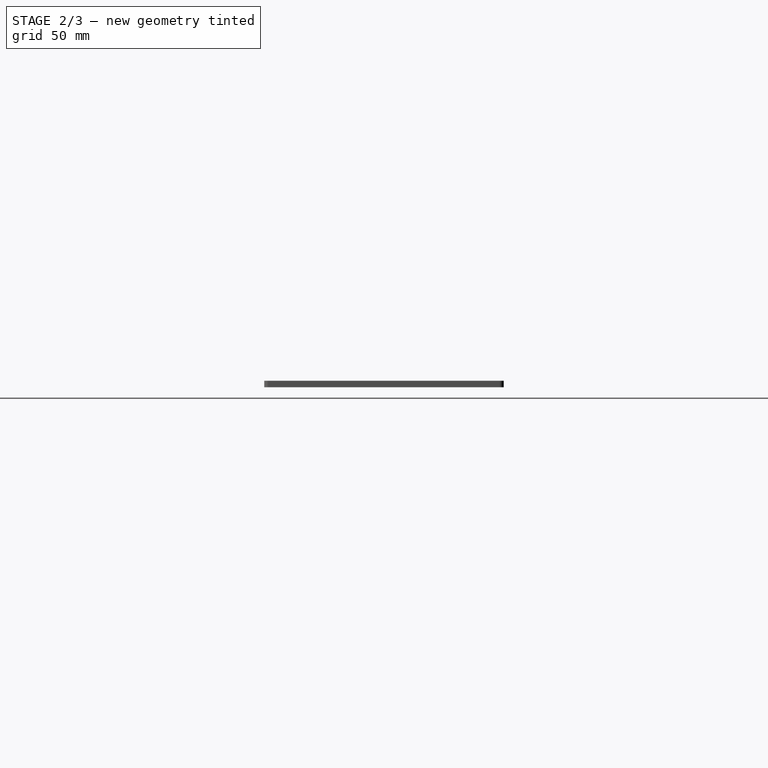
[diagram: stage 2 of 3 — right view after this stage's code; geometry added in this stage tinted green]
FEATURE [Sketcher::SketchObject] Sketch003  label="middle_keys_sketch"
  AttachmentOffset = pos=(0,0,3) rot=(0,0,1;0rad)
  FullyConstrained = true
  MapMode = 5
  Placement = pos=(0,0,3) rot=(0,0,1;0rad)
  Support = -> [XY_Plane001]
  expr: Constraints[35] = <<master>>#<<inputs>>.key_width + <<master>>#<<inputs>>.horizontal_key_spacing
  expr: Constraints[20] = <<master>>#<<inputs>>.key_height
  expr: Constraints[19] = <<master>>#<<inputs>>.key_width
  expr: Constraints[22] = (<<master>>#<<inputs>>.key_width + <<master>>#<<inputs>>.horizontal_key_spacing) * 5
  expr: Constraints[9] = <<master>>#<<inputs>>.key_height
  expr: Constraints[8] = <<master>>#<<inputs>>.key_width
  expr: .AttachmentOffset.Base.z = <<master>>#<<inputs>>.switch_layer_thickness
  sketch-geometry (78):
    g0: LineSegment StartX=-7 StartY=7 StartZ=0 EndX=7 EndY=7 EndZ=0
    g1: LineSegment StartX=7 StartY=7 StartZ=0 EndX=7 EndY=-7 EndZ=0
    g2: LineSegment StartX=7 StartY=-7 StartZ=0 EndX=-7 EndY=-7 EndZ=0
    g3: LineSegment StartX=-7 StartY=-7 StartZ=0 EndX=-7 EndY=7 EndZ=0
    g4: LineSegment StartX=88.25 StartY=7 StartZ=0 EndX=102.25 EndY=7 EndZ=0
    g5: LineSegment StartX=102.25 StartY=7 StartZ=0 EndX=102.25 EndY=-7 EndZ=0
    g6: LineSegment StartX=102.25 StartY=-7 StartZ=0 EndX=88.25 EndY=-7 EndZ=0
    g7: LineSegment StartX=88.25 StartY=-7 StartZ=0 EndX=88.25 EndY=7 EndZ=0
    g8: LineSegment StartX=107.3 StartY=7 StartZ=0 EndX=121.3 EndY=7 EndZ=0
    g9: LineSegment StartX=121.3 StartY=7 StartZ=0 EndX=121.3 EndY=-7 EndZ=0
    g10: LineSegment StartX=121.3 StartY=-7 StartZ=0 EndX=107.3 EndY=-7 EndZ=0
    g11: LineSegment StartX=107.3 StartY=-7 StartZ=0 EndX=107.3 EndY=7 EndZ=0
    g12: LineSegment StartX=88.25 StartY=7 StartZ=0 EndX=107.3 EndY=7 EndZ=0
    g13: LineSegment StartX=126.35 StartY=7 StartZ=0 EndX=140.35 EndY=7 EndZ=0
    g14: LineSegment StartX=140.35 StartY=7 StartZ=0 EndX=140.35 EndY=-7 EndZ=0
    g15: LineSegment StartX=140.35 StartY=-7 StartZ=0 EndX=126.35 EndY=-7 EndZ=0
    g16: LineSegment StartX=126.35 StartY=-7 StartZ=0 EndX=126.35 EndY=7 EndZ=0
    g17: LineSegment StartX=107.3 StartY=7 StartZ=0 EndX=126.35 EndY=7 EndZ=0
    g18: LineSegment StartX=145.4 StartY=7 StartZ=0 EndX=159.4 EndY=7 EndZ=0
    g19: LineSegment StartX=159.4 StartY=7 StartZ=0 EndX=159.4 EndY=-7 EndZ=0
    g20: LineSegment StartX=159.4 StartY=-7 StartZ=0 EndX=145.4 EndY=-7 EndZ=0
    g21: LineSegment StartX=145.4 StartY=-7 StartZ=0 EndX=145.4 EndY=7 EndZ=0
    g22: LineSegment StartX=126.35 StartY=7 StartZ=0 EndX=145.4 EndY=7 EndZ=0
    g23: LineSegment StartX=164.45 StartY=7 StartZ=0 EndX=178.45 EndY=7 EndZ=0
    g24: LineSegment StartX=178.45 StartY=7 StartZ=0 EndX=178.45 EndY=-7 EndZ=0
    g25: LineSegment StartX=178.45 StartY=-7 StartZ=0 EndX=164.45 EndY=-7 EndZ=0
    g26: LineSegment StartX=164.45 StartY=-7 StartZ=0 EndX=164.45 EndY=7 EndZ=0
    g27: LineSegment StartX=145.4 StartY=7 StartZ=0 EndX=164.45 EndY=7 EndZ=0
    g28: LineSegment StartX=88.25 StartY=-12.05 StartZ=0 EndX=102.25 EndY=-12.05 EndZ=0
    g29: LineSegment StartX=102.25 StartY=-12.05 StartZ=0 EndX=102.25 EndY=-26.05 EndZ=0
    g30: LineSegment StartX=102.25 StartY=-26.05 StartZ=0 EndX=88.25 EndY=-26.05 EndZ=0
    g31: LineSegment StartX=88.25 StartY=-26.05 StartZ=0 EndX=88.25 EndY=-12.05 EndZ=0
    g32: LineSegment StartX=88.25 StartY=7 StartZ=0 EndX=88.25 EndY=-12.05 EndZ=0
    g33: LineSegment StartX=107.3 StartY=-12.05 StartZ=0 EndX=121.3 EndY=-12.05 EndZ=0
    g34: LineSegment StartX=121.3 StartY=-12.05 StartZ=0 EndX=121.3 EndY=-26.05 EndZ=0
    g35: LineSegment StartX=121.3 StartY=-26.05 StartZ=0 EndX=107.3 EndY=-26.05 EndZ=0
    g36: LineSegment StartX=107.3 StartY=-26.05 StartZ=0 EndX=107.3 EndY=-12.05 EndZ=0
    g37: LineSegment StartX=88.25 StartY=-12.05 StartZ=0 EndX=107.3 EndY=-12.05 EndZ=0
    g38: LineSegment StartX=126.35 StartY=-12.05 StartZ=0 EndX=140.35 EndY=-12.05 EndZ=0
    g39: LineSegment StartX=140.35 StartY=-12.05 StartZ=0 EndX=140.35 EndY=-26.05 EndZ=0
    g40: LineSegment StartX=140.35 StartY=-26.05 StartZ=0 EndX=126.35 EndY=-26.05 EndZ=0
    g41: LineSegment StartX=126.35 StartY=-26.05 StartZ=0 EndX=126.35 EndY=-12.05 EndZ=0
    g42: LineSegment StartX=107.3 StartY=-12.05 StartZ=0 EndX=126.35 EndY=-12.05 EndZ=0
    g43: LineSegment StartX=145.4 StartY=-12.05 StartZ=0 EndX=159.4 EndY=-12.05 EndZ=0
    g44: LineSegment StartX=159.4 StartY=-12.05 StartZ=0 EndX=159.4 EndY=-26.05 EndZ=0
    g45: LineSegment StartX=159.4 StartY=-26.05 StartZ=0 EndX=145.4 EndY=-26.05 EndZ=0
    g46: LineSegment StartX=145.4 StartY=-26.05 StartZ=0 EndX=145.4 EndY=-12.05 EndZ=0
    g47: LineSegment StartX=126.35 StartY=-12.05 StartZ=0 EndX=145.4 EndY=-12.05 EndZ=0
    g48: LineSegment StartX=164.45 StartY=-12.05 StartZ=0 EndX=178.45 EndY=-12.05 EndZ=0
    g49: LineSegment StartX=178.45 StartY=-12.05 StartZ=0 EndX=178.45 EndY=-26.05 EndZ=0
    g50: LineSegment StartX=178.45 StartY=-26.05 StartZ=0 EndX=164.45 EndY=-26.05 EndZ=0
    g51: LineSegment StartX=164.45 StartY=-26.05 StartZ=0 EndX=164.45 EndY=-12.05 EndZ=0
    g52: LineSegment StartX=145.4 StartY=-12.05 StartZ=0 EndX=164.45 EndY=-12.05 EndZ=0
    g53: LineSegment StartX=88.25 StartY=-31.1 StartZ=0 EndX=102.25 EndY=-31.1 EndZ=0
    g54: LineSegment StartX=102.25 StartY=-31.1 StartZ=0 EndX=102.25 EndY=-45.1 EndZ=0
    g55: LineSegment StartX=102.25 StartY=-45.1 StartZ=0 EndX=88.25 EndY=-45.1 EndZ=0
    g56: LineSegment StartX=88.25 StartY=-45.1 StartZ=0 EndX=88.25 EndY=-31.1 EndZ=0
    g57: LineSegment StartX=88.25 StartY=-12.05 StartZ=0 EndX=88.25 EndY=-31.1 EndZ=0
    g58: LineSegment StartX=107.3 StartY=-31.1 StartZ=0 EndX=121.3 EndY=-31.1 EndZ=0
    g59: LineSegment StartX=121.3 StartY=-31.1 StartZ=0 EndX=121.3 EndY=-45.1 EndZ=0
    g60: LineSegment StartX=121.3 StartY=-45.1 StartZ=0 EndX=107.3 EndY=-45.1 EndZ=0
    g61: LineSegment StartX=107.3 StartY=-45.1 StartZ=0 EndX=107.3 EndY=-31.1 EndZ=0
    g62: LineSegment StartX=88.25 StartY=-31.1 StartZ=0 EndX=107.3 EndY=-31.1 EndZ=0
    g63: LineSegment StartX=126.35 StartY=-31.1 StartZ=0 EndX=140.35 EndY=-31.1 EndZ=0
    g64: LineSegment StartX=140.35 StartY=-31.1 StartZ=0 EndX=140.35 EndY=-45.1 EndZ=0
    g65: LineSegment StartX=140.35 StartY=-45.1 StartZ=0 EndX=126.35 EndY=-45.1 EndZ=0
    g66: LineSegment StartX=126.35 StartY=-45.1 StartZ=0 EndX=126.35 EndY=-31.1 EndZ=0
    g67: LineSegment StartX=107.3 StartY=-31.1 StartZ=0 EndX=126.35 EndY=-31.1 EndZ=0
    g68: LineSegment StartX=145.4 StartY=-31.1 StartZ=0 EndX=159.4 EndY=-31.1 EndZ=0
    g69: LineSegment StartX=159.4 StartY=-31.1 StartZ=0 EndX=159.4 EndY=-45.1 EndZ=0
    g70: LineSegment StartX=159.4 StartY=-45.1 StartZ=0 EndX=145.4 EndY=-45.1 EndZ=0
    g71: LineSegment StartX=145.4 StartY=-45.1 StartZ=0 EndX=145.4 EndY=-31.1 EndZ=0
    g72: LineSegment StartX=126.35 StartY=-31.1 StartZ=0 EndX=145.4 EndY=-31.1 EndZ=0
    g73: LineSegment StartX=164.45 StartY=-31.1 StartZ=0 EndX=178.45 EndY=-31.1 EndZ=0
    g74: LineSegment StartX=178.45 StartY=-31.1 StartZ=0 EndX=178.45 EndY=-45.1 EndZ=0
    g75: LineSegment StartX=178.45 StartY=-45.1 StartZ=0 EndX=164.45 EndY=-45.1 EndZ=0
    g76: LineSegment StartX=164.45 StartY=-45.1 StartZ=0 EndX=164.45 EndY=-31.1 EndZ=0
    g77: LineSegment StartX=145.4 StartY=-31.1 StartZ=0 EndX=164.45 EndY=-31.1 EndZ=0
  constraints (219):
    c: Coincident(g0,g1)
    c: Coincident(g1,g2)
    c: Coincident(g2,g3)
    c: Coincident(g3,g0)
    c: Horizontal(g0)
    c: Horizontal(g2)
    c: Vertical(g1)
    c: Vertical(g3)
    c: Distance(g0) = 14
    c: Distance(g3) = 14
    c: Symmetric(g0,g1,g-1)
    c: Coincident(g4,g5)
    c: Coincident(g5,g6)
    c: Coincident(g6,g7)
    c: Coincident(g7,g4)
    c: Horizontal(g4)
    c: Horizontal(g6)
    c: Vertical(g5)
    c: Vertical(g7)
    c: Distance(g4) = 14
    c: Distance(g7) = 14
    c: DistanceY(g4,g0) = 0
    c: DistanceX(g0,g4) = 95.25
    c: Coincident(g8,g9)
    c: Coincident(g9,g10)
    c: Coincident(g10,g11)
    c: Coincident(g11,g8)
    c: Horizontal(g8)
    c: Horizontal(g10)
    c: Vertical(g9)
    c: Vertical(g11)
    c: Equal(g4,g8) = 14
    c: Equal(g7,g11) = 14
    c: Coincident(g4,g12)
    c: Coincident(g8,g12)
    c: Distance(g12) = 19.05
    c: Angle(g12) = 0
    c: Coincident(g13,g14)
    c: Coincident(g14,g15)
    c: Coincident(g15,g16)
    c: Coincident(g16,g13)
    c: Horizontal(g13)
    c: Horizontal(g15)
    c: Vertical(g14)
    c: Vertical(g16)
    c: Equal(g4,g13) = 14
    c: Equal(g7,g16) = 14
    c: Coincident(g8,g17)
    c: Coincident(g13,g17)
    c: Equal(g12,g17)
    c: Parallel(g17,g12)
    c: Coincident(g18,g19)
    c: Coincident(g19,g20)
    c: Coincident(g20,g21)
    c: Coincident(g21,g18)
    c: Horizontal(g18)
    c: Horizontal(g20)
    c: Vertical(g19)
    c: Vertical(g21)
    c: Equal(g4,g18) = 14
    c: Equal(g7,g21) = 14
    c: Coincident(g13,g22)
    c: Coincident(g18,g22)
    c: Equal(g12,g22)
    c: Parallel(g22,g12)
    c: Coincident(g23,g24)
    c: Coincident(g24,g25)
    c: Coincident(g25,g26)
    c: Coincident(g26,g23)
    c: Horizontal(g23)
    c: Horizontal(g25)
    c: Vertical(g24)
    c: Vertical(g26)
    c: Equal(g4,g23) = 14
    c: Equal(g7,g26) = 14
    c: Coincident(g18,g27)
    c: Coincident(g23,g27)
    c: Equal(g12,g27)
    c: Parallel(g27,g12)
    c: Coincident(g28,g29)
    c: Coincident(g29,g30)
    c: Coincident(g30,g31)
    c: Coincident(g31,g28)
    c: Horizontal(g28)
    c: Horizontal(g30)
    c: Vertical(g29)
    c: Vertical(g31)
    c: Equal(g4,g28) = 14
    c: Equal(g7,g31) = 14
    c: Coincident(g4,g32)
    c: Coincident(g28,g32)
    c: Equal(g32,g12)
    c: Perpendicular(g32,g12)
    c: Coincident(g33,g34)
    c: Coincident(g34,g35)
    c: Coincident(g35,g36)
    c: Coincident(g36,g33)
    c: Horizontal(g33)
    c: Horizontal(g35)
    c: Vertical(g34)
    c: Vertical(g36)
    c: Equal(g4,g33) = 14
    c: Equal(g7,g36) = 14
    c: Coincident(g28,g37)
    c: Coincident(g33,g37)
    c: Equal(g12,g37)
    c: Parallel(g37,g12)
    c: Coincident(g38,g39)
    c: Coincident(g39,g40)
    c: Coincident(g40,g41)
    c: Coincident(g41,g38)
    c: Horizontal(g38)
    c: Horizontal(g40)
    c: Vertical(g39)
    c: Vertical(g41)
    c: Equal(g4,g38) = 14
    c: Equal(g7,g41) = 14
    c: Coincident(g33,g42)
    c: Coincident(g38,g42)
    c: Equal(g12,g42)
    c: Parallel(g42,g12)
    c: Coincident(g43,g44)
    c: Coincident(g44,g45)
    c: Coincident(g45,g46)
    c: Coincident(g46,g43)
    c: Horizontal(g43)
    c: Horizontal(g45)
    c: Vertical(g44)
    c: Vertical(g46)
    c: Equal(g4,g43) = 14
    c: Equal(g7,g46) = 14
    c: Coincident(g38,g47)
    c: Coincident(g43,g47)
    c: Equal(g12,g47)
    c: Parallel(g47,g12)
    c: Coincident(g48,g49)
    c: Coincident(g49,g50)
    c: Coincident(g50,g51)
    c: Coincident(g51,g48)
    c: Horizontal(g48)
    c: Horizontal(g50)
    c: Vertical(g49)
    c: Vertical(g51)
    c: Equal(g4,g48) = 14
    c: Equal(g7,g51) = 14
    c: Coincident(g43,g52)
    c: Coincident(g48,g52)
    c: Equal(g12,g52)
    c: Parallel(g52,g12)
    c: Coincident(g53,g54)
    c: Coincident(g54,g55)
    c: Coincident(g55,g56)
    c: Coincident(g56,g53)
    c: Horizontal(g53)
    c: Horizontal(g55)
    c: Vertical(g54)
    c: Vertical(g56)
    c: Equal(g4,g53) = 14
    c: Equal(g7,g56) = 14
    c: Coincident(g28,g57)
    c: Coincident(g53,g57)
    c: Equal(g32,g57)
    c: Perpendicular(g57,g12)
    c: Coincident(g58,g59)
    c: Coincident(g59,g60)
    c: Coincident(g60,g61)
    c: Coincident(g61,g58)
    c: Horizontal(g58)
    c: Horizontal(g60)
    c: Vertical(g59)
    c: Vertical(g61)
    c: Equal(g4,g58) = 14
    c: Equal(g7,g61) = 14
    c: Coincident(g53,g62)
    c: Coincident(g58,g62)
    c: Equal(g12,g62)
    c: Parallel(g62,g12)
    c: Coincident(g63,g64)
    c: Coincident(g64,g65)
    c: Coincident(g65,g66)
    c: Coincident(g66,g63)
    c: Horizontal(g63)
    c: Horizontal(g65)
    c: Vertical(g64)
    c: Vertical(g66)
    c: Equal(g4,g63) = 14
    c: Equal(g7,g66) = 14
    c: Coincident(g58,g67)
    c: Coincident(g63,g67)
    c: Equal(g12,g67)
    c: Parallel(g67,g12)
    c: Coincident(g68,g69)
    c: Coincident(g69,g70)
    c: Coincident(g70,g71)
    c: Coincident(g71,g68)
    c: Horizontal(g68)
    c: Horizontal(g70)
    c: Vertical(g69)
    c: Vertical(g71)
    c: Equal(g4,g68) = 14
    c: Equal(g7,g71) = 14
    c: Coincident(g63,g72)
    c: Coincident(g68,g72)
    c: Equal(g12,g72)
    c: Parallel(g72,g12)
    c: Coincident(g73,g74)
    c: Coincident(g74,g75)
    c: Coincident(g75,g76)
    c: Coincident(g76,g73)
    c: Horizontal(g73)
    c: Horizontal(g75)
    c: Vertical(g74)
    c: Vertical(g76)
    c: Equal(g4,g73) = 14
    c: Equal(g7,g76) = 14
    c: Coincident(g68,g77)
    c: Coincident(g73,g77)
    c: Equal(g12,g77)
    c: Parallel(g77,g12)
FEATURE [PartDesign::Pocket] Pocket002  label="middle_keys_pocket"
  BaseFeature = -> Pocket001
  Length = 4
  Length2 = 100
  Profile = -> Sketch003
  Type = 0
  expr: Length = <<master>>#<<inputs>>.switch_layer_thickness + 1mm
FEATURE [Sketcher::SketchObject] Sketch004  label="right_keys_sketch"
  AttachmentOffset = pos=(0,0,3) rot=(0,0,1;0rad)
  FullyConstrained = true
  MapMode = 5
  Placement = pos=(0,0,3) rot=(0,0,1;0rad)
  Support = -> [XY_Plane001]
  expr: .AttachmentOffset.Base.z = <<master>>#<<inputs>>.switch_layer_thickness
  expr: Constraints[8] = <<master>>#<<inputs>>.key_width
  expr: Constraints[9] = <<master>>#<<inputs>>.key_height
  expr: Constraints[22] = (<<master>>#<<inputs>>.key_width + <<master>>#<<inputs>>.horizontal_key_spacing) * 10
  expr: Constraints[21] = (<<master>>#<<inputs>>.key_height + <<master>>#<<inputs>>.vertical_key_spacing) * 2
  expr: Constraints[35] = <<master>>#<<inputs>>.key_width + <<master>>#<<inputs>>.horizontal_key_spacing
  sketch-geometry (39):
    g0: LineSegment StartX=-7 StartY=7 StartZ=0 EndX=7 EndY=7 EndZ=0
    g1: LineSegment StartX=7 StartY=7 StartZ=0 EndX=7 EndY=-7 EndZ=0
    g2: LineSegment StartX=7 StartY=-7 StartZ=0 EndX=-7 EndY=-7 EndZ=0
    g3: LineSegment StartX=-7 StartY=-7 StartZ=0 EndX=-7 EndY=7 EndZ=0
    g4: LineSegment StartX=183.5 StartY=-31.1 StartZ=0 EndX=197.5 EndY=-31.1 EndZ=0
    g5: LineSegment StartX=197.5 StartY=-31.1 StartZ=0 EndX=197.5 EndY=-45.1 EndZ=0
    g6: LineSegment StartX=197.5 StartY=-45.1 StartZ=0 EndX=183.5 EndY=-45.1 EndZ=0
    g7: LineSegment StartX=183.5 StartY=-45.1 StartZ=0 EndX=183.5 EndY=-31.1 EndZ=0
    g8: GeomPoint X=183.5 Y=-31.1 Z=0
    g9: LineSegment StartX=202.55 StartY=-31.1 StartZ=0 EndX=216.55 EndY=-31.1 EndZ=0
    g10: LineSegment StartX=216.55 StartY=-31.1 StartZ=0 EndX=216.55 EndY=-45.1 EndZ=0
    g11: LineSegment StartX=216.55 StartY=-45.1 StartZ=0 EndX=202.55 EndY=-45.1 EndZ=0
    g12: LineSegment StartX=202.55 StartY=-45.1 StartZ=0 EndX=202.55 EndY=-31.1 EndZ=0
    g13: GeomPoint X=202.55 Y=-31.1 Z=0
    g14: LineSegment StartX=183.5 StartY=-31.1 StartZ=0 EndX=202.55 EndY=-31.1 EndZ=0
    g15: LineSegment StartX=221.6 StartY=-31.1 StartZ=0 EndX=235.6 EndY=-31.1 EndZ=0
    g16: LineSegment StartX=235.6 StartY=-31.1 StartZ=0 EndX=235.6 EndY=-45.1 EndZ=0
    g17: LineSegment StartX=235.6 StartY=-45.1 StartZ=0 EndX=221.6 EndY=-45.1 EndZ=0
    g18: LineSegment StartX=221.6 StartY=-45.1 StartZ=0 EndX=221.6 EndY=-31.1 EndZ=0
    g19: GeomPoint X=221.6 Y=-31.1 Z=0
    g20: LineSegment StartX=202.55 StartY=-31.1 StartZ=0 EndX=221.6 EndY=-31.1 EndZ=0
    g21: LineSegment StartX=240.65 StartY=-31.1 StartZ=0 EndX=254.65 EndY=-31.1 EndZ=0
    g22: LineSegment StartX=254.65 StartY=-31.1 StartZ=0 EndX=254.65 EndY=-45.1 EndZ=0
    g23: LineSegment StartX=254.65 StartY=-45.1 StartZ=0 EndX=240.65 EndY=-45.1 EndZ=0
    g24: LineSegment StartX=240.65 StartY=-45.1 StartZ=0 EndX=240.65 EndY=-31.1 EndZ=0
    g25: GeomPoint X=240.65 Y=-31.1 Z=0
    g26: LineSegment StartX=221.6 StartY=-31.1 StartZ=0 EndX=240.65 EndY=-31.1 EndZ=0
    g27: LineSegment StartX=259.7 StartY=-31.1 StartZ=0 EndX=273.7 EndY=-31.1 EndZ=0
    g28: LineSegment StartX=273.7 StartY=-31.1 StartZ=0 EndX=273.7 EndY=-45.1 EndZ=0
    g29: LineSegment StartX=273.7 StartY=-45.1 StartZ=0 EndX=259.7 EndY=-45.1 EndZ=0
    g30: LineSegment StartX=259.7 StartY=-45.1 StartZ=0 EndX=259.7 EndY=-31.1 EndZ=0
    g31: GeomPoint X=259.7 Y=-31.1 Z=0
    g32: LineSegment StartX=240.65 StartY=-31.1 StartZ=0 EndX=259.7 EndY=-31.1 EndZ=0
    g33: LineSegment StartX=278.75 StartY=-31.1 StartZ=0 EndX=292.75 EndY=-31.1 EndZ=0
    g34: LineSegment StartX=292.75 StartY=-31.1 StartZ=0 EndX=292.75 EndY=-45.1 EndZ=0
    g35: LineSegment StartX=292.75 StartY=-45.1 StartZ=0 EndX=278.75 EndY=-45.1 EndZ=0
    g36: LineSegment StartX=278.75 StartY=-45.1 StartZ=0 EndX=278.75 EndY=-31.1 EndZ=0
    g37: GeomPoint X=278.75 Y=-31.1 Z=0
    g38: LineSegment StartX=259.7 StartY=-31.1 StartZ=0 EndX=278.75 EndY=-31.1 EndZ=0
  constraints (99):
    c: Coincident(g0,g1)
    c: Coincident(g1,g2)
    c: Coincident(g2,g3)
    c: Coincident(g3,g0)
    c: Horizontal(g0)
    c: Horizontal(g2)
    c: Vertical(g1)
    c: Vertical(g3)
    c: Distance(g0) = 14
    c: Distance(g3) = 14
    c: Symmetric(g0,g1,g-1)
    c: Coincident(g4,g5)
    c: Coincident(g5,g6)
    c: Coincident(g6,g7)
    c: Coincident(g7,g4)
    c: Horizontal(g4)
    c: Horizontal(g6)
    c: Vertical(g5)
    c: Vertical(g7)
    c: Equal(g0,g4)
    c: Equal(g3,g5)
    c: DistanceY(g8,g0) = 38.1
    c: DistanceX(g0,g8) = 190.5
    c: Coincident(g4,g8)
    c: Coincident(g9,g10)
    c: Coincident(g10,g11)
    c: Coincident(g11,g12)
    c: Coincident(g12,g9)
    c: Horizontal(g9)
    c: Horizontal(g11)
    c: Vertical(g10)
    c: Vertical(g12)
    c: Coincident(g9,g13)
    c: Coincident(g4,g14)
    c: Coincident(g9,g14)
    c: Distance(g14) = 19.05
    c: Angle(g14) = 0
    c: Coincident(g15,g16)
    c: Coincident(g16,g17)
    c: Coincident(g17,g18)
    c: Coincident(g18,g15)
    c: Horizontal(g15)
    c: Horizontal(g17)
    c: Vertical(g16)
    c: Vertical(g18)
    c: Coincident(g15,g19)
    c: Coincident(g9,g20)
    c: Coincident(g15,g20)
    c: Equal(g14,g20)
    c: Parallel(g20,g14)
    c: Coincident(g21,g22)
    c: Coincident(g22,g23)
    c: Coincident(g23,g24)
    c: Coincident(g24,g21)
    c: Horizontal(g21)
    c: Horizontal(g23)
    c: Vertical(g22)
    c: Vertical(g24)
    c: Coincident(g21,g25)
    c: Coincident(g15,g26)
    c: Coincident(g21,g26)
    c: Equal(g14,g26)
    c: Parallel(g26,g14)
    c: Coincident(g27,g28)
    c: Coincident(g28,g29)
    c: Coincident(g29,g30)
    c: Coincident(g30,g27)
    c: Horizontal(g27)
    c: Horizontal(g29)
    c: Vertical(g28)
    c: Vertical(g30)
    c: Coincident(g27,g31)
    c: Coincident(g21,g32)
    c: Coincident(g27,g32)
    c: Equal(g14,g32)
    c: Parallel(g32,g14)
    c: Coincident(g33,g34)
    c: Coincident(g34,g35)
    c: Coincident(g35,g36)
    c: Coincident(g36,g33)
    c: Horizontal(g33)
    c: Horizontal(g35)
    c: Vertical(g34)
    c: Vertical(g36)
    c: Coincident(g33,g37)
    c: Coincident(g27,g38)
    c: Coincident(g33,g38)
    c: Equal(g14,g38)
    c: Parallel(g38,g14)
    c: Equal(g12,g7)
    c: Equal(g12,g18)
    c: Equal(g24,g18)
    c: Equal(g24,g30)
    c: Equal(g30,g36)
    c: Equal(g4,g9)
    c: Equal(g15,g9)
    c: Equal(g21,g15)
    c: Equal(g21,g27)
    c: Equal(g27,g33)
FEATURE [PartDesign::Pocket] Pocket003  label="right_keys_pocket"
  BaseFeature = -> Pocket002
  Length = 4
  Length2 = 100
  Profile = -> Sketch004
  Type = 0
  expr: Length = <<master>>#<<inputs>>.switch_layer_thickness + 1mm
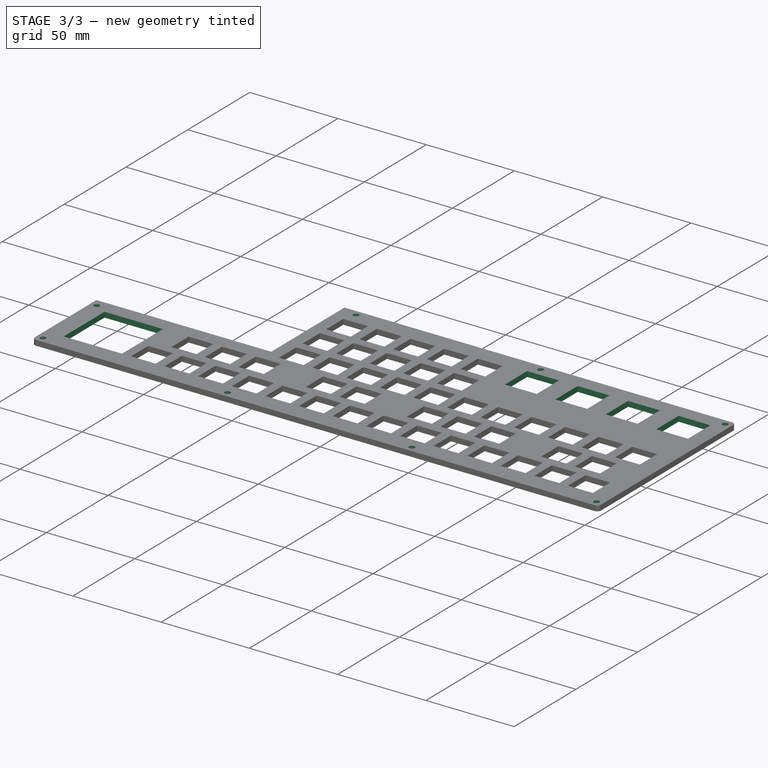
[diagram: stage 3 of 3 — iso view after this stage's code; geometry added in this stage tinted green]
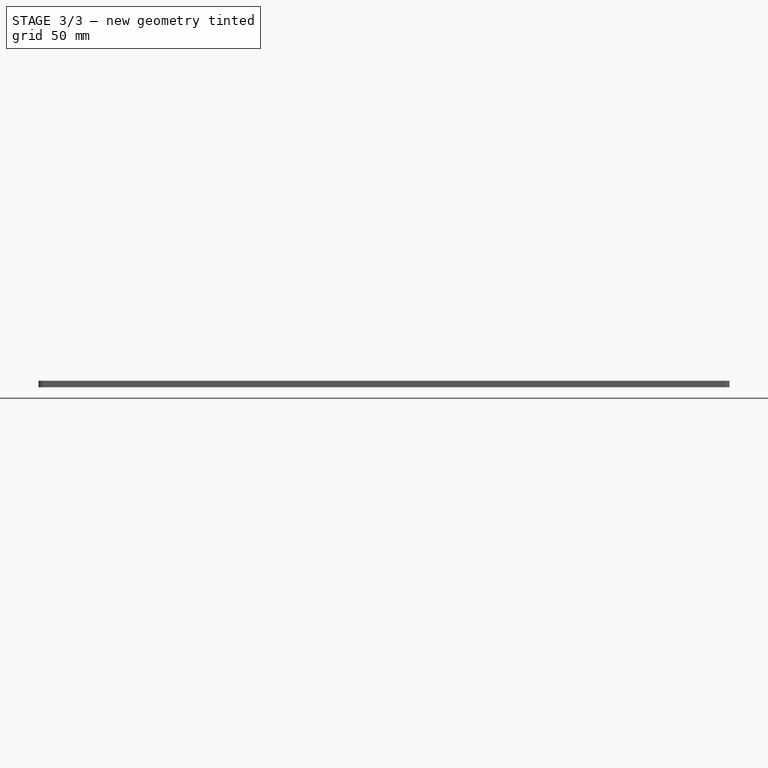
[diagram: stage 3 of 3 — front view after this stage's code; geometry added in this stage tinted green]
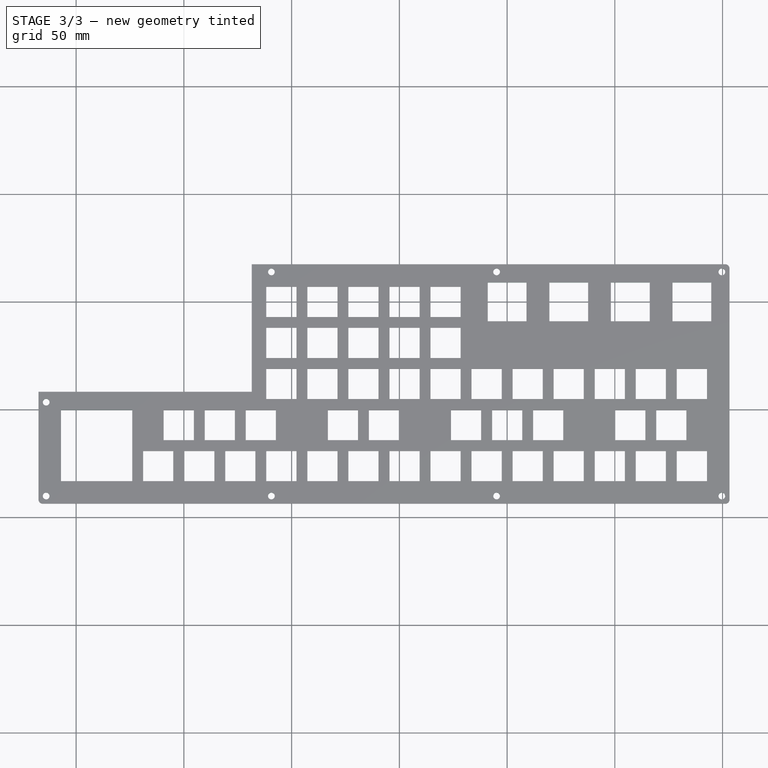
[diagram: stage 3 of 3 — top view after this stage's code; geometry added in this stage tinted green]
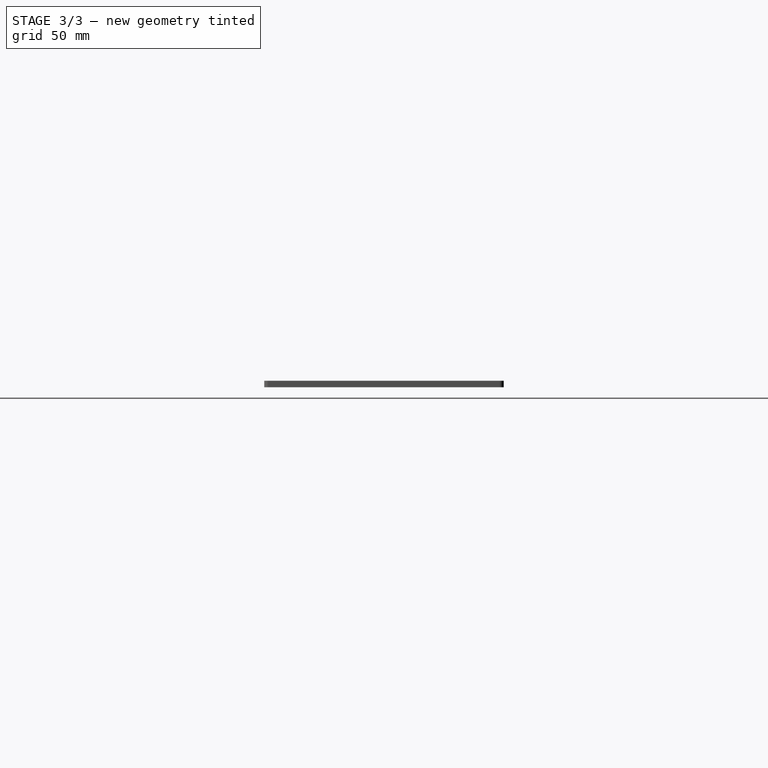
[diagram: stage 3 of 3 — right view after this stage's code; geometry added in this stage tinted green]
FEATURE [Sketcher::SketchObject] Sketch005  label="encoders_sketch"
  AttachmentOffset = pos=(0,0,3) rot=(0,0,1;0rad)
  FullyConstrained = true
  MapMode = 5
  Placement = pos=(0,0,3) rot=(0,0,1;0rad)
  Support = -> [XY_Plane001]
  expr: Constraints[35] = <<master>>#<<inputs>>.key_width + <<master>>#<<inputs>>.horizontal_key_spacing + (<<master>>#<<inputs>>.key_width + <<master>>#<<inputs>>.horizontal_key_spacing) / 2
  expr: Constraints[12] = (<<master>>#<<inputs>>.key_width + <<master>>#<<inputs>>.horizontal_key_spacing) * 10 + (<<master>>#<<inputs>>.key_width + <<master>>#<<inputs>>.horizontal_key_spacing) / 2
  expr: Constraints[9] = <<master>>#<<inputs>>.key_height
  expr: Constraints[8] = <<master>>#<<inputs>>.key_width
  expr: Constraints[82] = <<master>>#<<inputs>>.encoder_height
  expr: .AttachmentOffset.Base.z = <<master>>#<<inputs>>.switch_layer_thickness
  expr: Constraints[81] = <<master>>#<<inputs>>.encoder_width
  sketch-geometry (47):
    g0: LineSegment StartX=-7 StartY=7 StartZ=0 EndX=7 EndY=7 EndZ=0
    g1: LineSegment StartX=7 StartY=7 StartZ=0 EndX=7 EndY=-7 EndZ=0
    g2: LineSegment StartX=7 StartY=-7 StartZ=0 EndX=-7 EndY=-7 EndZ=0
    g3: LineSegment StartX=-7 StartY=-7 StartZ=0 EndX=-7 EndY=7 EndZ=0
    g4: GeomPoint X=193.025 Y=7 Z=0
    g5: LineSegment StartX=193.025 StartY=7 StartZ=0 EndX=207.025 EndY=7 EndZ=0
    g6: LineSegment StartX=207.025 StartY=7 StartZ=0 EndX=207.025 EndY=-7 EndZ=0
    g7: LineSegment StartX=207.025 StartY=-7 StartZ=0 EndX=193.025 EndY=-7 EndZ=0
    g8: LineSegment StartX=193.025 StartY=-7 StartZ=0 EndX=193.025 EndY=7 EndZ=0
    g9: GeomPoint X=221.6 Y=7 Z=0
    g10: LineSegment StartX=221.6 StartY=7 StartZ=0 EndX=235.6 EndY=7 EndZ=0
    g11: LineSegment StartX=235.6 StartY=7 StartZ=0 EndX=235.6 EndY=-7 EndZ=0
    g12: LineSegment StartX=235.6 StartY=-7 StartZ=0 EndX=221.6 EndY=-7 EndZ=0
    g13: LineSegment StartX=221.6 StartY=-7 StartZ=0 EndX=221.6 EndY=7 EndZ=0
    g14: LineSegment StartX=193.025 StartY=7 StartZ=0 EndX=221.6 EndY=7 EndZ=0
    g15: GeomPoint X=250.175 Y=7 Z=0
    g16: LineSegment StartX=250.175 StartY=7 StartZ=0 EndX=264.175 EndY=7 EndZ=0
    g17: LineSegment StartX=264.175 StartY=7 StartZ=0 EndX=264.175 EndY=-7 EndZ=0
    g18: LineSegment StartX=264.175 StartY=-7 StartZ=0 EndX=250.175 EndY=-7 EndZ=0
    g19: LineSegment StartX=250.175 StartY=-7 StartZ=0 EndX=250.175 EndY=7 EndZ=0
    g20: LineSegment StartX=221.6 StartY=7 StartZ=0 EndX=250.175 EndY=7 EndZ=0
    g21: GeomPoint X=278.75 Y=7 Z=0
    g22: LineSegment StartX=278.75 StartY=7 StartZ=0 EndX=292.75 EndY=7 EndZ=0
    g23: LineSegment StartX=292.75 StartY=7 StartZ=0 EndX=292.75 EndY=-7 EndZ=0
    g24: LineSegment StartX=292.75 StartY=-7 StartZ=0 EndX=278.75 EndY=-7 EndZ=0
    g25: LineSegment StartX=278.75 StartY=-7 StartZ=0 EndX=278.75 EndY=7 EndZ=0
    g26: LineSegment StartX=250.175 StartY=7 StartZ=0 EndX=278.75 EndY=7 EndZ=0
    g27: GeomPoint X=200.025 Y=7.7e-15 Z=0
    g28: GeomPoint X=228.6 Y=-4e-15 Z=0
    g29: GeomPoint X=257.175 Y=9e-15 Z=0
    g30: GeomPoint X=285.75 Y=-1.23e-14 Z=0
    g31: LineSegment StartX=191.025 StartY=9 StartZ=0 EndX=209.025 EndY=9 EndZ=0
    g32: LineSegment StartX=209.025 StartY=9 StartZ=0 EndX=209.025 EndY=-9 EndZ=0
    g33: LineSegment StartX=209.025 StartY=-9 StartZ=0 EndX=191.025 EndY=-9 EndZ=0
    g34: LineSegment StartX=191.025 StartY=-9 StartZ=0 EndX=191.025 EndY=9 EndZ=0
    g35: LineSegment StartX=276.75 StartY=9 StartZ=0 EndX=294.75 EndY=9 EndZ=0
    g36: LineSegment StartX=294.75 StartY=9 StartZ=0 EndX=294.75 EndY=-9 EndZ=0
    g37: LineSegment StartX=294.75 StartY=-9 StartZ=0 EndX=276.75 EndY=-9 EndZ=0
    g38: LineSegment StartX=276.75 StartY=-9 StartZ=0 EndX=276.75 EndY=9 EndZ=0
    g39: LineSegment StartX=248.175 StartY=9 StartZ=0 EndX=266.175 EndY=9 EndZ=0
    g40: LineSegment StartX=266.175 StartY=9 StartZ=0 EndX=266.175 EndY=-9 EndZ=0
    g41: LineSegment StartX=266.175 StartY=-9 StartZ=0 EndX=248.175 EndY=-9 EndZ=0
    g42: LineSegment StartX=248.175 StartY=-9 StartZ=0 EndX=248.175 EndY=9 EndZ=0
    g43: LineSegment StartX=219.6 StartY=9 StartZ=0 EndX=237.6 EndY=9 EndZ=0
    g44: LineSegment StartX=237.6 StartY=9 StartZ=0 EndX=237.6 EndY=-9 EndZ=0
    g45: LineSegment StartX=237.6 StartY=-9 StartZ=0 EndX=219.6 EndY=-9 EndZ=0
    g46: LineSegment StartX=219.6 StartY=-9 StartZ=0 EndX=219.6 EndY=9 EndZ=0
  constraints (117):
    c: Coincident(g0,g1)
    c: Coincident(g1,g2)
    c: Coincident(g2,g3)
    c: Coincident(g3,g0)
    c: Horizontal(g0)
    c: Horizontal(g2)
    c: Vertical(g1)
    c: Vertical(g3)
    c: Distance(g0) = 14
    c: Distance(g3) = 14
    c: Symmetric(g0,g1,g-1)
    c: DistanceY(g4,g0) = 0
    c: DistanceX(g0,g4) = 200.025
    c: Coincident(g5,g6)
    c: Coincident(g6,g7)
    c: Coincident(g7,g8)
    c: Coincident(g8,g5)
    c: Horizontal(g5)
    c: Horizontal(g7)
    c: Vertical(g6)
    c: Vertical(g8)
    c: Equal(g0,g5)
    c: Equal(g3,g8)
    c: Coincident(g5,g4)
    c: Coincident(g10,g11)
    c: Coincident(g11,g12)
    c: Coincident(g12,g13)
    c: Coincident(g13,g10)
    c: Horizontal(g10)
    c: Horizontal(g12)
    c: Vertical(g11)
    c: Vertical(g13)
    c: Coincident(g10,g9)
    c: Coincident(g4,g14)
    c: Coincident(g9,g14)
    c: Distance(g14) = 28.575
    c: Angle(g14) = 0
    c: Coincident(g16,g17)
    c: Coincident(g17,g18)
    c: Coincident(g18,g19)
    c: Coincident(g19,g16)
    c: Horizontal(g16)
    c: Horizontal(g18)
    c: Vertical(g17)
    c: Vertical(g19)
    c: Coincident(g16,g15)
    c: Coincident(g9,g20)
    c: Coincident(g15,g20)
    c: Equal(g14,g20)
    c: Parallel(g20,g14)
    c: Coincident(g22,g23)
    c: Coincident(g23,g24)
    c: Coincident(g24,g25)
    c: Coincident(g25,g22)
    c: Horizontal(g22)
    c: Horizontal(g24)
    c: Vertical(g23)
    c: Vertical(g25)
    c: Coincident(g22,g21)
    c: Coincident(g15,g26)
    c: Coincident(g21,g26)
    c: Equal(g14,g26)
    c: Parallel(g26,g14)
    c: Equal(g8,g13)
    c: Equal(g13,g19)
    c: Equal(g19,g25)
    c: Equal(g5,g10)
    c: Equal(g10,g16)
    c: Equal(g16,g22)
    c: Symmetric(g5,g6,g27)
    c: Symmetric(g10,g11,g28)
    c: Symmetric(g16,g17,g29)
    c: Symmetric(g22,g23,g30)
    c: Coincident(g31,g32)
    c: Coincident(g32,g33)
    c: Coincident(g33,g34)
    c: Coincident(g34,g31)
    c: Horizontal(g31)
    c: Horizontal(g33)
    c: Vertical(g32)
    c: Vertical(g34)
    c: Distance(g31) = 18
    c: Distance(g34) = 18
    c: Coincident(g35,g36)
    c: Coincident(g36,g37)
    c: Coincident(g37,g38)
    c: Coincident(g38,g35)
    c: Horizontal(g35)
    c: Horizontal(g37)
    c: Vertical(g36)
    c: Vertical(g38)
    c: Coincident(g39,g40)
    c: Coincident(g40,g41)
    c: Coincident(g41,g42)
    c: Coincident(g42,g39)
    c: Horizontal(g39)
    c: Horizontal(g41)
    c: Vertical(g40)
    c: Vertical(g42)
    c: Coincident(g43,g44)
    c: Coincident(g44,g45)
    c: Coincident(g45,g46)
    c: Coincident(g46,g43)
    c: Horizontal(g43)
    c: Horizontal(g45)
    c: Vertical(g44)
    c: Vertical(g46)
    c: Equal(g31,g43)
    c: Equal(g34,g46)
    c: Equal(g31,g39)
    c: Equal(g34,g42)
    c: Equal(g31,g35)
    c: Equal(g34,g38)
    c: Symmetric(g31,g32,g27)
    c: Symmetric(g43,g44,g28)
    c: Symmetric(g39,g40,g29)
    c: Symmetric(g35,g36,g30)
FEATURE [PartDesign::Pocket] Pocket004  label="encoders_pocket"
  BaseFeature = -> Pocket003
  Length = 4
  Length2 = 100
  Profile = -> Sketch005
  Type = 0
  expr: Length = <<master>>#<<inputs>>.switch_layer_thickness + 1mm
FEATURE [Sketcher::SketchObject] Sketch006  label="joystick_sketch"
  AttachmentOffset = pos=(0,0,3) rot=(0,0,1;0rad)
  FullyConstrained = true
  MapMode = 5
  Placement = pos=(0,0,3) rot=(0,0,1;0rad)
  Support = -> [XY_Plane001]
  expr: .AttachmentOffset.Base.z = <<master>>#<<inputs>>.switch_layer_thickness
  expr: Constraints[8] = <<master>>#<<inputs>>.key_width
  expr: Constraints[44] = (<<master>>#<<inputs>>.key_height + <<master>>#<<inputs>>.vertical_key_spacing) * 3
  expr: Constraints[9] = <<master>>#<<inputs>>.key_height
  expr: Constraints[22] = (<<master>>#<<inputs>>.key_height + <<master>>#<<inputs>>.vertical_key_spacing) * 4
  expr: Constraints[46] = <<master>>#<<inputs>>.key_width * 2 + <<master>>#<<inputs>>.horizontal_key_spacing
  sketch-geometry (16):
    g0: LineSegment StartX=-7 StartY=7 StartZ=0 EndX=7 EndY=7 EndZ=0
    g1: LineSegment StartX=7 StartY=7 StartZ=0 EndX=7 EndY=-7 EndZ=0
    g2: LineSegment StartX=7 StartY=-7 StartZ=0 EndX=-7 EndY=-7 EndZ=0
    g3: LineSegment StartX=-7 StartY=-7 StartZ=0 EndX=-7 EndY=7 EndZ=0
    g4: LineSegment StartX=-7 StartY=-69.2 StartZ=0 EndX=7 EndY=-69.2 EndZ=0
    g5: LineSegment StartX=7 StartY=-69.2 StartZ=0 EndX=7 EndY=-83.2 EndZ=0
    g6: LineSegment StartX=7 StartY=-83.2 StartZ=0 EndX=-7 EndY=-83.2 EndZ=0
    g7: LineSegment StartX=-7 StartY=-83.2 StartZ=0 EndX=-7 EndY=-69.2 EndZ=0
    g8: LineSegment StartX=-7 StartY=-50.15 StartZ=0 EndX=26.05 EndY=-50.15 EndZ=0
    g9: LineSegment StartX=26.05 StartY=-50.15 StartZ=0 EndX=26.05 EndY=-83.2 EndZ=0
    g10: LineSegment StartX=26.05 StartY=-83.2 StartZ=0 EndX=-7 EndY=-83.2 EndZ=0
    g11: LineSegment StartX=-7 StartY=-83.2 StartZ=0 EndX=-7 EndY=-50.15 EndZ=0
    g12: LineSegment StartX=-7 StartY=-50.15 StartZ=0 EndX=7 EndY=-50.15 EndZ=0
    g13: LineSegment StartX=7 StartY=-50.15 StartZ=0 EndX=7 EndY=-64.15 EndZ=0
    g14: LineSegment StartX=7 StartY=-64.15 StartZ=0 EndX=-7 EndY=-64.15 EndZ=0
    g15: LineSegment StartX=-7 StartY=-64.15 StartZ=0 EndX=-7 EndY=-50.15 EndZ=0
  constraints (47):
    c: Coincident(g0,g1)
    c: Coincident(g1,g2)
    c: Coincident(g2,g3)
    c: Coincident(g3,g0)
    c: Horizontal(g0)
    c: Horizontal(g2)
    c: Vertical(g1)
    c: Vertical(g3)
    c: Distance(g0) = 14
    c: Distance(g3) = 14
    c: Symmetric(g0,g1,g-1)
    c: Coincident(g4,g5)
    c: Coincident(g5,g6)
    c: Coincident(g6,g7)
    c: Coincident(g7,g4)
    c: Horizontal(g4)
    c: Horizontal(g6)
    c: Vertical(g5)
    c: Vertical(g7)
    c: Equal(g0,g4)
    c: Equal(g3,g7)
    c: DistanceX(g2,g4) = 0
    c: DistanceY(g4,g0) = 76.2
    c: Coincident(g8,g9)
    c: Coincident(g9,g10)
    c: Coincident(g10,g11)
    c: Coincident(g11,g8)
    c: Horizontal(g8)
    c: Horizontal(g10)
    c: Vertical(g9)
    c: Vertical(g11)
    c: DistanceX(g6,g10) = 0
    c: DistanceY(g9,g5) = 0
    c: Coincident(g12,g13)
    c: Coincident(g13,g14)
    c: Coincident(g14,g15)
    c: Coincident(g15,g12)
    c: Horizontal(g12)
    c: Horizontal(g14)
    c: Vertical(g13)
    c: Vertical(g15)
    c: Equal(g12,g4)
    c: Equal(g15,g3)
    c: DistanceX(g2,g12) = 0
    c: DistanceY(g12,g0) = 57.15
    c: DistanceY(g12,g8) = 0
    c: Distance(g8) = 33.05
FEATURE [PartDesign::Pocket] Pocket005  label="joystick_pocket"
  BaseFeature = -> Pocket004
  Length = 4
  Length2 = 100
  Profile = -> Sketch006
  Type = 0
  expr: Length = <<master>>#<<inputs>>.switch_layer_thickness + 1mm
FEATURE [Sketcher::SketchObject] Sketch007  label="mounting_holes_sketch"
  AttachmentOffset = pos=(0,0,3) rot=(0,0,1;0rad)
  FullyConstrained = true
  MapMode = 5
  Placement = pos=(0,0,3) rot=(0,0,1;0rad)
  Support = -> [XY_Plane001]
  expr: .AttachmentOffset.Base.z = <<master>>#<<inputs>>.switch_layer_thickness
  expr: Constraints[13] = <<master>>#<<inputs>>.left_edge_padding - <<master>>#<<inputs>>.wall_thickness / 2
  expr: Constraints[8] = <<master>>#<<inputs>>.key_width
  expr: Constraints[9] = <<master>>#<<inputs>>.key_height
  expr: Constraints[22] = ((<<master>>#<<inputs>>.key_width + <<master>>#<<inputs>>.horizontal_key_spacing) * 15 + <<master>>#<<inputs>>.key_width + <<master>>#<<inputs>>.right_edge_padding - <<master>>#<<inputs>>.wall_thickness / 2 + <<master>>#<<inputs>>.left_edge_padding - <<master>>#<<inputs>>.wall_thickness / 2) / 3
  expr: Constraints[11] = <<master>>#<<inputs>>.mounting_hole_diameter / 2
  expr: Constraints[12] = (<<master>>#<<inputs>>.key_height + <<master>>#<<inputs>>.vertical_key_spacing) * 4 + <<master>>#<<inputs>>.bottom_edge_padding - <<master>>#<<inputs>>.wall_thickness / 2 + <<master>>#<<inputs>>.key_height
  expr: Constraints[15] = (<<master>>#<<inputs>>.key_width + <<master>>#<<inputs>>.horizontal_key_spacing) * 15 + <<master>>#<<inputs>>.key_width + <<master>>#<<inputs>>.right_edge_padding - <<master>>#<<inputs>>.wall_thickness / 2
  expr: Constraints[19] = ((<<master>>#<<inputs>>.key_width + <<master>>#<<inputs>>.horizontal_key_spacing) * 15 + <<master>>#<<inputs>>.key_width + <<master>>#<<inputs>>.right_edge_padding - <<master>>#<<inputs>>.wall_thickness / 2 + <<master>>#<<inputs>>.left_edge_padding - <<master>>#<<inputs>>.wall_thickness / 2) / 3
  expr: Constraints[24] = <<master>>#<<inputs>>.top_edge_padding - <<master>>#<<inputs>>.wall_thickness / 2
  expr: Constraints[34] = (<<master>>#<<inputs>>.key_height + <<master>>#<<inputs>>.vertical_key_spacing) * 3 - <<master>>#<<inputs>>.wall_thickness / 2
  sketch-geometry (12):
    g0: LineSegment StartX=-7 StartY=7 StartZ=0 EndX=7 EndY=7 EndZ=0
    g1: LineSegment StartX=7 StartY=7 StartZ=0 EndX=7 EndY=-7 EndZ=0
    g2: LineSegment StartX=7 StartY=-7 StartZ=0 EndX=-7 EndY=-7 EndZ=0
    g3: LineSegment StartX=-7 StartY=-7 StartZ=0 EndX=-7 EndY=7 EndZ=0
    g4: Circle CenterX=-13.9055 CenterY=-90.1055 CenterZ=0 NormalX=0 NormalY=0 NormalZ=1 AngleXU=0 Radius=1.55
    g5: Circle CenterX=299.656 CenterY=-90.1055 CenterZ=0 NormalX=0 NormalY=0 NormalZ=1 AngleXU=0 Radius=1.55
    g6: Circle CenterX=90.6148 CenterY=-90.1055 CenterZ=0 NormalX=0 NormalY=0 NormalZ=1 AngleXU=0 Radius=1.55
    g7: Circle CenterX=195.135 CenterY=-90.1055 CenterZ=0 NormalX=0 NormalY=0 NormalZ=1 AngleXU=0 Radius=1.55
    g8: Circle CenterX=90.6148 CenterY=13.9055 CenterZ=0 NormalX=0 NormalY=0 NormalZ=1 AngleXU=0 Radius=1.55
    g9: Circle CenterX=195.135 CenterY=13.9055 CenterZ=0 NormalX=0 NormalY=0 NormalZ=1 AngleXU=0 Radius=1.55
    g10: Circle CenterX=299.656 CenterY=13.9055 CenterZ=0 NormalX=0 NormalY=0 NormalZ=1 AngleXU=0 Radius=1.55
    g11: Circle CenterX=-13.9055 CenterY=-46.578 CenterZ=0 NormalX=0 NormalY=0 NormalZ=1 AngleXU=0 Radius=1.55
  constraints (35):
    c: Coincident(g0,g1)
    c: Coincident(g1,g2)
    c: Coincident(g2,g3)
    c: Coincident(g3,g0)
    c: Horizontal(g0)
    c: Horizontal(g2)
    c: Vertical(g1)
    c: Vertical(g3)
    c: Distance(g0) = 14
    c: Distance(g3) = 14
    c: Symmetric(g0,g1,g-1)
    c: Radius(g4) = 1.55
    c: DistanceY(g4,g0) = 97.1055
    c: DistanceX(g4,g2) = 6.9055
    c: Equal(g4,g5)
    c: DistanceX(g0,g5) = 306.656
    c: Equal(g4,g6)
    c: DistanceY(g4,g5) = 0
    c: DistanceY(g4,g6) = 0
    c: DistanceX(g4,g6) = 104.52
    c: Equal(g7,g5)
    c: DistanceY(g5,g7) = 0
    c: DistanceX(g7,g5) = 104.52
    c: Equal(g8,g4)
    c: DistanceY(g0,g8) = 6.9055
    c: DistanceX(g8,g6) = 0
    c: DistanceX(g9,g7) = 0
    c: DistanceY(g9,g8) = 0
    c: Equal(g8,g9)
    c: Equal(g9,g10)
    c: DistanceY(g10,g9) = 0
    c: DistanceX(g10,g5) = 0
    c: Equal(g11,g4)
    c: DistanceX(g4,g11) = 0
    c: DistanceY(g11,g0) = 53.578
FEATURE [PartDesign::Pocket] Pocket006  label="mounting_holes_pocket"
  BaseFeature = -> Pocket005
  Length = 4
  Length2 = 100
  Profile = -> Sketch007
  Type = 0
  expr: Length = <<master>>#<<inputs>>.switch_layer_thickness + 1mm
FEATURE [PartDesign::Body] Body  label="switch_layer_body"
  Group = -> [Sketch,Pad,Sketch001,Pocket,Sketch002,Pocket001,Sketch003,Pocket002,Sketch004,Pocket003,Sketch005,Pocket004,Sketch006,Pocket005,Sketch007,Pocket006]
  Origin = -> Origin001
  Tip = -> Pocket006
FEATURE [PartDesign::CoordinateSystem] top_left_LCS_switch_layer  label="switch_layer_lcs"
  AttacherType = Attacher::AttachEngine3D
  MapMode = 5
  Placement = pos=(0,0,3) rot=(0,0,1;0rad)
  Support = -> [Pocket006]
FEATURE [App::Part] Part  label="switch_layer_part"
  Group = -> [Body,top_left_LCS_switch_layer]
  Origin = -> Origin
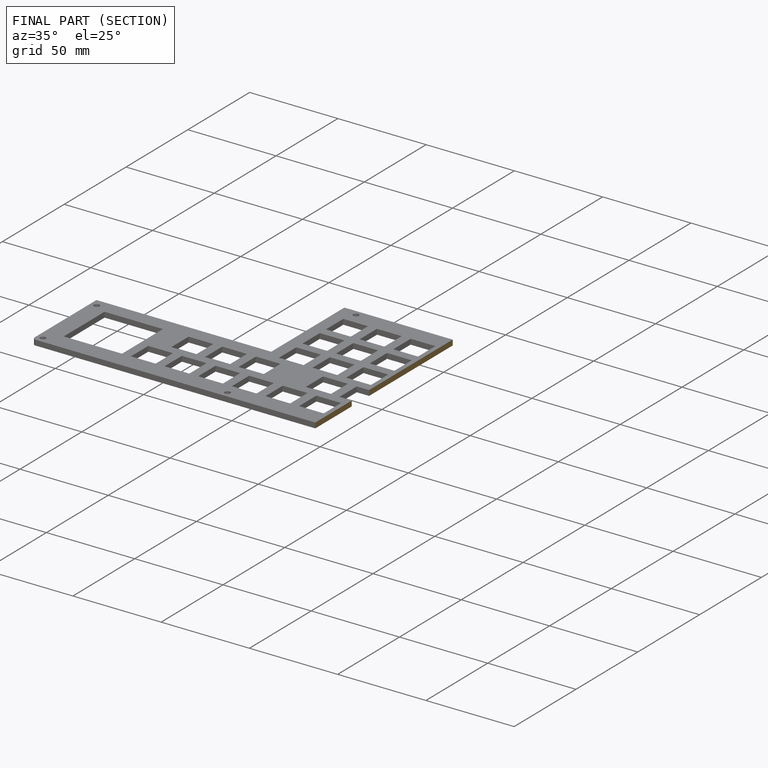
[diagram: finished part — half-section view (interior)]
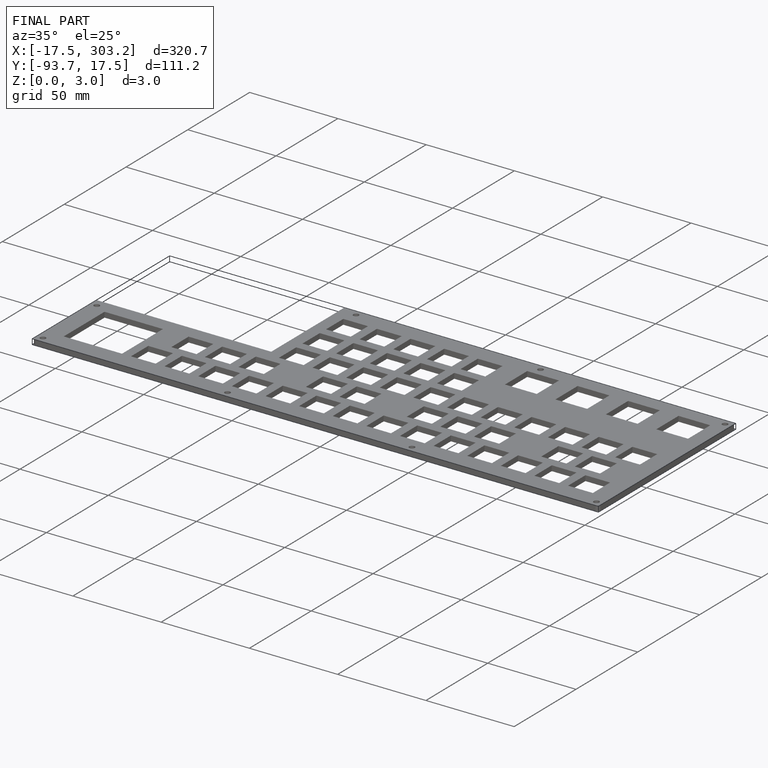
[diagram: finished part — iso view with bounding-box wireframe]
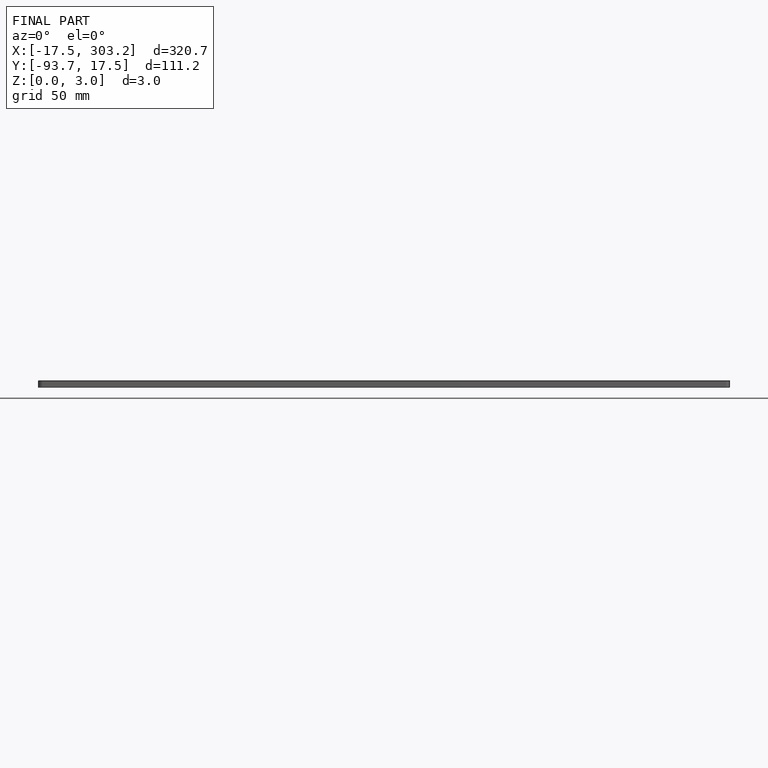
[diagram: finished part — front view with bounding-box wireframe]
